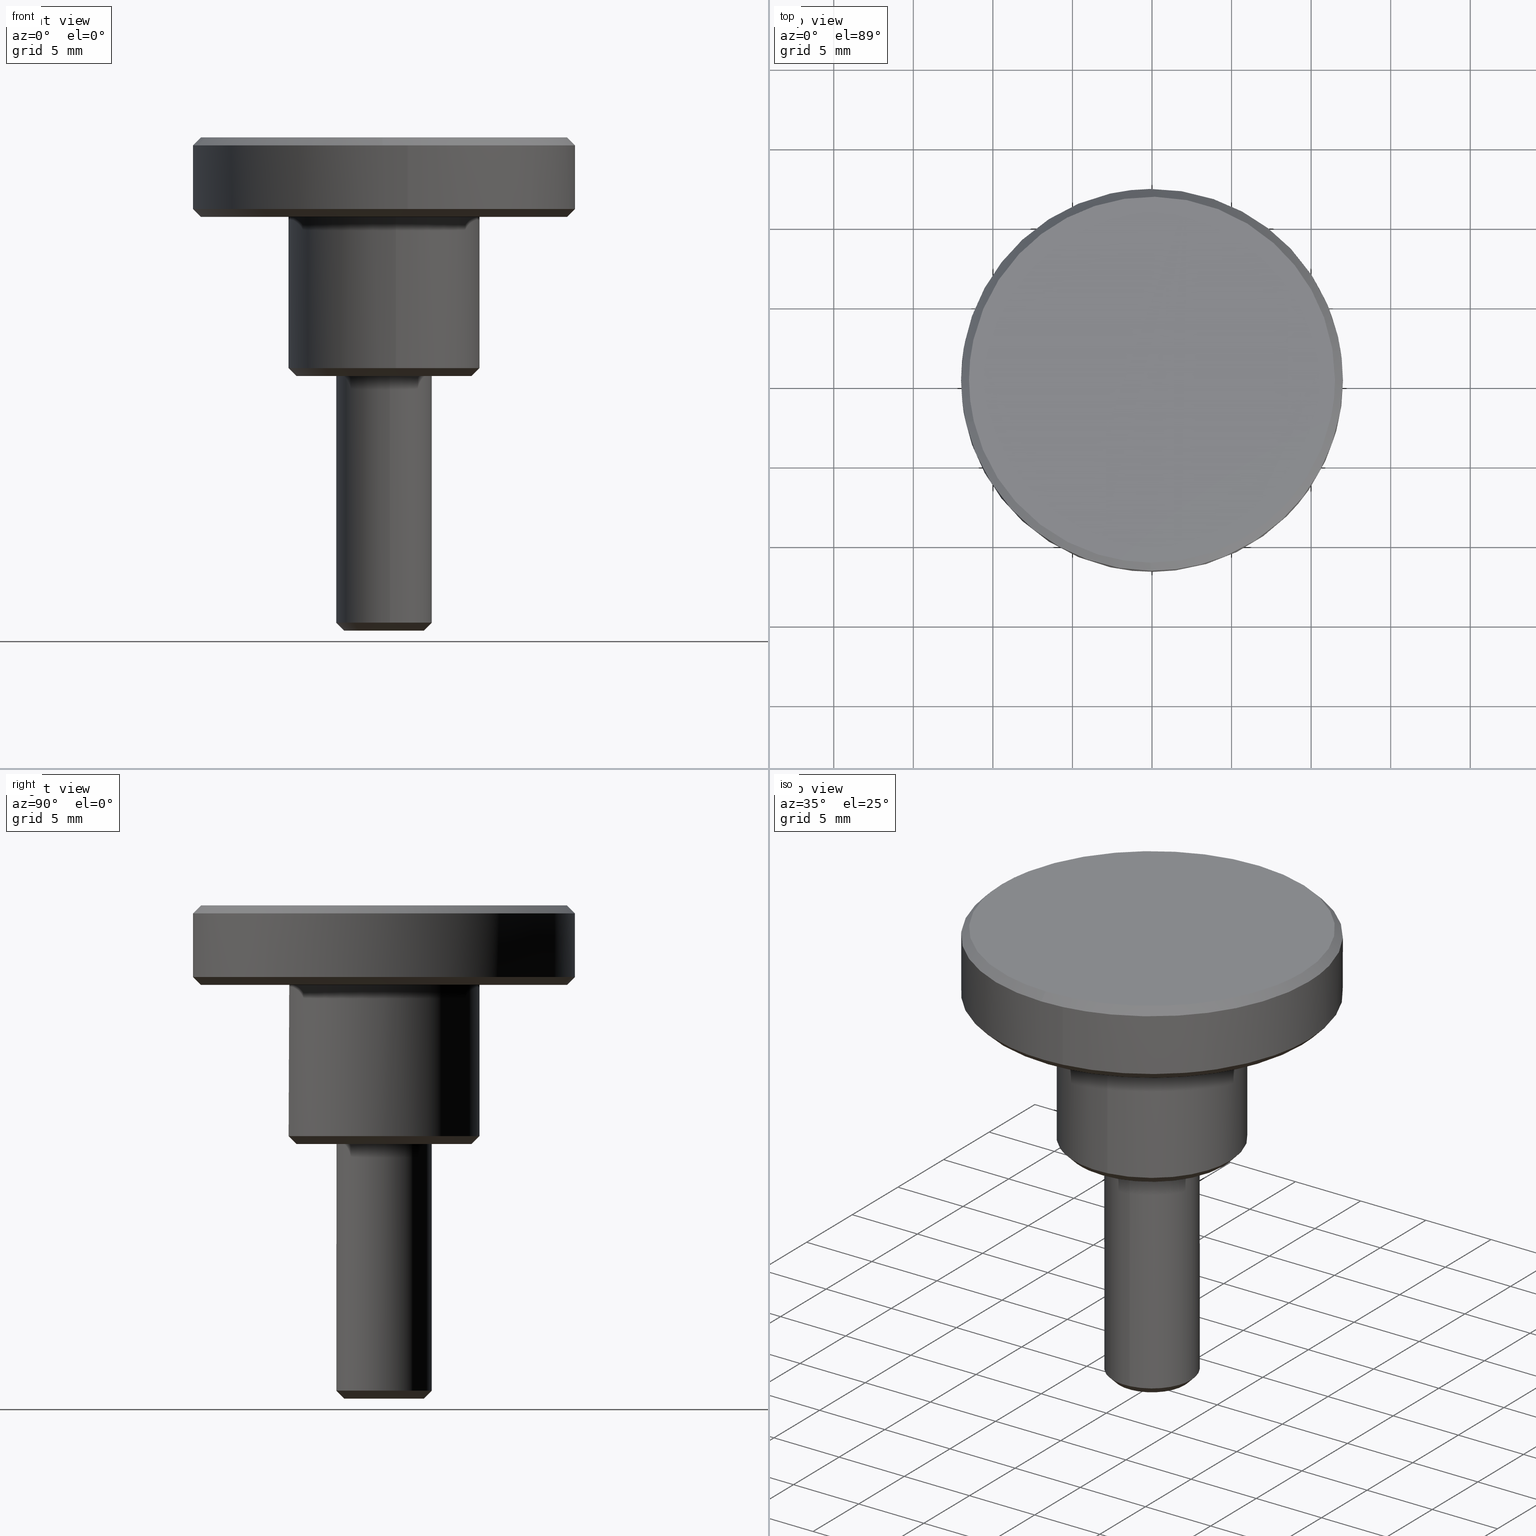
[diagram: canonical four-view strip — front | top / right | iso, engineering-drawing reading convention]
A machine part, canonical four-view strip (front | top / right | iso — engineering-drawing reading convention). The complete STEP part file that produces these views, byte-faithful:
ISO-10303-21;
HEADER;
/****************************************************************
 * Generated by software with PDE/Lib inside                    *
 * PDElib Version 4.4.1-0003, patched  Thursday August 19 11:58 *
 * International Technegroup Inc. (www.iti-oh.com)              *
 ****************************************************************/
FILE_DESCRIPTION((''),'2;1');
FILE_NAME('','2005-07-15T10:50:49',(''),(''),'','CADfix','');
FILE_SCHEMA(('AUTOMOTIVE_DESIGN'));
ENDSEC;
DATA;
#5=APPLICATION_CONTEXT('automotive design');
#6=APPLICATION_PROTOCOL_DEFINITION('Draft International Standard','automotive_design',1998,#5);
#7=PRODUCT_CONTEXT('None',#5,'mechanical');
#8=PRODUCT('knob','','None',(#7));
#9=PRODUCT_RELATED_PRODUCT_CATEGORY('part','description',(#8));
#10=PRODUCT_DEFINITION_FORMATION('None','None',#8);
#11=PRODUCT_DEFINITION_CONTEXT('part definition',#5,'design');
#12=PRODUCT_DEFINITION('None','None',#10,#11);
#18=(NAMED_UNIT(*)PLANE_ANGLE_UNIT()SI_UNIT($,.RADIAN.));
#19=DIMENSIONAL_EXPONENTS(0.0,0.0,0.0,0.0,0.0,0.0,0.0);
#20=PLANE_ANGLE_MEASURE_WITH_UNIT(PLANE_ANGLE_MEASURE(0.017453292500000),#18);
#24=(CONVERSION_BASED_UNIT('DEGREE',#20)NAMED_UNIT(#19)PLANE_ANGLE_UNIT());
#28=(NAMED_UNIT(*)SI_UNIT($,.STERADIAN.)SOLID_ANGLE_UNIT());
#32=(LENGTH_UNIT()NAMED_UNIT(*)SI_UNIT(.MILLI.,.METRE.));
#34=UNCERTAINTY_MEASURE_WITH_UNIT(LENGTH_MEASURE(0.001000000000000),#32,'DISTANCE_ACCURACY_VALUE','');
#36=(GEOMETRIC_REPRESENTATION_CONTEXT(3)GLOBAL_UNCERTAINTY_ASSIGNED_CONTEXT((#34))GLOBAL_UNIT_ASSIGNED_CONTEXT((#24,#28,#32))REPRESENTATION_CONTEXT('None','None'));
#37=AXIS2_PLACEMENT_3D('',#38,#39,#40);
#38=CARTESIAN_POINT('',(0.0,0.0,0.0));
#39=DIRECTION('',(0.0,0.0,1.0));
#40=DIRECTION('',(1.0,0.0,0.0));
#41=ADVANCED_BREP_SHAPE_REPRESENTATION('',(#37,#1263),#36);
#42=PRODUCT_DEFINITION_SHAPE('','',#12);
#43=SHAPE_DEFINITION_REPRESENTATION(#42,#41);
#44=CARTESIAN_POINT('',(-1.005485887069838,-2.275226226313197,-16.012499999999996));
#45=CARTESIAN_POINT('',(-0.514770454620326,-2.492087053684582,-16.012499999999996));
#46=CARTESIAN_POINT('',(0.021707257052205,-2.487405283622127,-16.012499999999999));
#47=CARTESIAN_POINT('',(2.509112540674333,-2.465698026569922,-16.012499999999996));
#48=CARTESIAN_POINT('',(2.487405283622127,0.021707257052205,-16.012499999999999));
#49=CARTESIAN_POINT('',(2.465698026569922,2.509112540674333,-16.012499999999996));
#50=CARTESIAN_POINT('',(-0.021707257052205,2.487405283622127,-16.012499999999999));
#51=CARTESIAN_POINT('',(-1.217825306185946,-2.755710558779537,-15.487187500000005));
#52=CARTESIAN_POINT('',(-0.623480144848552,-3.018368251830729,-15.487187500000001));
#53=CARTESIAN_POINT('',(0.026291415231194,-3.012697781331719,-15.487187499999999));
#54=CARTESIAN_POINT('',(3.038989196562912,-2.986406366100526,-15.487187499999992));
#55=CARTESIAN_POINT('',(3.012697781331719,0.026291415231194,-15.487187499999999));
#56=CARTESIAN_POINT('',(2.986406366100526,3.038989196562912,-15.487187499999992));
#57=CARTESIAN_POINT('',(-0.026291415231194,3.012697781331719,-15.487187499999999));
#65=(BOUNDED_SURFACE()B_SPLINE_SURFACE(2,1,((#44,#51),(#45,#52),(#46,#53),(#47,#54),(#48,#55),(#49,#56),(#50,#57)),.UNSPECIFIED.,.F.,.F.,.U.)B_SPLINE_SURFACE_WITH_KNOTS((3,2,2,3),(2,2),(0.0,1.397701534193628,6.389492727742298,11.381283921290970),(0.0,1.0),.UNSPECIFIED.)GEOMETRIC_REPRESENTATION_ITEM()RATIONAL_B_SPLINE_SURFACE(((0.881905454174416,0.881905454174416),(0.917989898732233,0.917989898732233),(1.0,1.0),(0.707106781186548,0.707106781186548),(1.0,1.0),(0.707106781186548,0.707106781186548),(1.0,1.0)))REPRESENTATION_ITEM('')SURFACE());
#66=CARTESIAN_POINT('',(-1.212646295988026,-2.743991428711031,-15.499999999997790));
#67=VERTEX_POINT('',#66);
#68=CARTESIAN_POINT('',(0.372384006263488,-2.976798641473614,-15.500000000000000));
#69=VERTEX_POINT('',#68);
#70=CARTESIAN_POINT('',(-1.212646295988027,-2.743991428711031,-15.499999999997790));
#71=CARTESIAN_POINT('',(-0.633346851782509,-3.0,-15.500000000000004));
#72=CARTESIAN_POINT('',(0.0,-3.0,-15.500000000000000));
#73=CARTESIAN_POINT('',(0.186914782624762,-3.000000000000000,-15.499999999999996));
#74=CARTESIAN_POINT('',(0.372384006263488,-2.976798641473614,-15.500000000000002));
#82=(BOUNDED_CURVE()B_SPLINE_CURVE(2,(#70,#71,#72,#73,#74),.UNSPECIFIED.,.F.,.U.)B_SPLINE_CURVE_WITH_KNOTS((3,2,3),(0.181361578457257,0.250000000000000,0.271473928973420),.UNSPECIFIED.)CURVE()GEOMETRIC_REPRESENTATION_ITEM()RATIONAL_B_SPLINE_CURVE((0.883326595749057,0.919585087120285,1.0,0.974841727289614,0.954005430269442))REPRESENTATION_ITEM(''));
#83=EDGE_CURVE('',#67,#69,#82,.T.);
#84=ORIENTED_EDGE('',*,*,#83,.F.);
#85=CARTESIAN_POINT('',(-1.010538579970380,-2.286659523932618,-15.999999999999940));
#86=VERTEX_POINT('',#85);
#87=CARTESIAN_POINT('',(-1.010538579970380,-2.286659523932618,-15.999999999999940));
#88=CARTESIAN_POINT('',(-1.212646295988026,-2.743991428711031,-15.499999999997790));
#89=QUASI_UNIFORM_CURVE('',1,(#87,#88),.UNSPECIFIED.,.F.,.U.);
#90=EDGE_CURVE('',#86,#67,#89,.T.);
#91=ORIENTED_EDGE('',*,*,#90,.F.);
#92=CARTESIAN_POINT('',(2.500000000000000,0.0,-16.0));
#93=VERTEX_POINT('',#92);
#94=CARTESIAN_POINT('',(2.500000000000000,0.0,-16.0));
#95=CARTESIAN_POINT('',(2.500000000000000,-2.500000000000000,-15.999999999999998));
#96=CARTESIAN_POINT('',(0.0,-2.500000000000000,-16.0));
#97=CARTESIAN_POINT('',(-0.527789043130474,-2.500000000000000,-16.000000000000004));
#98=CARTESIAN_POINT('',(-1.010538579970380,-2.286659523932618,-15.999999999999941));
#106=(BOUNDED_CURVE()B_SPLINE_CURVE(2,(#94,#95,#96,#97,#98),.UNSPECIFIED.,.F.,.U.)B_SPLINE_CURVE_WITH_KNOTS((3,2,3),(0.500000000000000,0.750000000000000,0.818638421540158),.UNSPECIFIED.)CURVE()GEOMETRIC_REPRESENTATION_ITEM()RATIONAL_B_SPLINE_CURVE((1.0,0.707106781186548,1.0,0.919585087123314,0.883326595751788))REPRESENTATION_ITEM(''));
#107=EDGE_CURVE('',#93,#86,#106,.T.);
#108=ORIENTED_EDGE('',*,*,#107,.F.);
#109=CARTESIAN_POINT('',(-0.021816338839869,2.499904807672422,-15.999999999987191));
#110=VERTEX_POINT('',#109);
#111=CARTESIAN_POINT('',(-0.021816338839869,2.499904807672423,-15.999999999987184));
#112=CARTESIAN_POINT('',(-0.010908377145582,2.500000000000001,-15.999999999999996));
#113=CARTESIAN_POINT('',(0.0,2.500000000000000,-16.0));
#114=CARTESIAN_POINT('',(2.500000000000000,2.500000000000000,-15.999999999999998));
#115=CARTESIAN_POINT('',(2.500000000000000,0.0,-16.0));
#123=(BOUNDED_CURVE()B_SPLINE_CURVE(2,(#111,#112,#113,#114,#115),.UNSPECIFIED.,.F.,.U.)B_SPLINE_CURVE_WITH_KNOTS((3,2,3),(0.248460105651791,0.250000000000000,0.500000000000000),.UNSPECIFIED.)CURVE()GEOMETRIC_REPRESENTATION_ITEM()RATIONAL_B_SPLINE_CURVE((0.996414028069808,0.998195901550882,1.0,0.707106781186548,1.0))REPRESENTATION_ITEM(''));
#124=EDGE_CURVE('',#110,#93,#123,.T.);
#125=ORIENTED_EDGE('',*,*,#124,.F.);
#126=CARTESIAN_POINT('',(-0.026179606505881,2.999885769192394,-15.500000000000000));
#127=VERTEX_POINT('',#126);
#128=CARTESIAN_POINT('',(-0.021816338839869,2.499904807672422,-15.999999999987191));
#129=CARTESIAN_POINT('',(-0.026179606505881,2.999885769192394,-15.500000000000000));
#130=QUASI_UNIFORM_CURVE('',1,(#128,#129),.UNSPECIFIED.,.F.,.U.);
#131=EDGE_CURVE('',#110,#127,#130,.T.);
#132=ORIENTED_EDGE('',*,*,#131,.T.);
#133=CARTESIAN_POINT('',(3.0,0.0,-15.500000000000000));
#134=VERTEX_POINT('',#133);
#135=CARTESIAN_POINT('',(3.0,0.0,-15.500000000000000));
#136=CARTESIAN_POINT('',(3.0,3.0,-15.500000000000004));
#137=CARTESIAN_POINT('',(0.0,3.0,-15.500000000000000));
#138=CARTESIAN_POINT('',(-0.013090052483620,3.000000000000000,-15.500000000000002));
#139=CARTESIAN_POINT('',(-0.026179606505881,2.999885769192395,-15.499999999999996));
#147=(BOUNDED_CURVE()B_SPLINE_CURVE(2,(#135,#136,#137,#138,#139),.UNSPECIFIED.,.F.,.U.)B_SPLINE_CURVE_WITH_KNOTS((3,2,3),(0.500000000000000,0.750000000000000,0.751539894337514),.UNSPECIFIED.)CURVE()GEOMETRIC_REPRESENTATION_ITEM()RATIONAL_B_SPLINE_CURVE((1.0,0.707106781186548,1.0,0.998195901563412,0.996414028094559))REPRESENTATION_ITEM(''));
#148=EDGE_CURVE('',#134,#127,#147,.T.);
#149=ORIENTED_EDGE('',*,*,#148,.F.);
#150=CARTESIAN_POINT('',(0.372384006263488,-2.976798641473614,-15.500000000000000));
#151=CARTESIAN_POINT('',(3.000000000000000,-2.648095800407653,-15.500000000000002));
#152=CARTESIAN_POINT('',(3.0,0.0,-15.500000000000000));
#160=(BOUNDED_CURVE()B_SPLINE_CURVE(2,(#150,#151,#152),.UNSPECIFIED.,.F.,.U.)B_SPLINE_CURVE_WITH_KNOTS((3,3),(0.271473928973421,0.500000000000000),.UNSPECIFIED.)CURVE()GEOMETRIC_REPRESENTATION_ITEM()RATIONAL_B_SPLINE_CURVE((0.954005430269441,0.732265053896934,1.0))REPRESENTATION_ITEM(''));
#161=EDGE_CURVE('',#69,#134,#160,.T.);
#162=ORIENTED_EDGE('',*,*,#161,.F.);
#163=EDGE_LOOP('',(#84,#91,#108,#125,#132,#149,#162));
#164=FACE_OUTER_BOUND('',#163,.T.);
#165=ADVANCED_FACE('',(#164),#65,.T.);
#166=CARTESIAN_POINT('',(-0.021707257052205,2.487405283622127,-16.012499999999999));
#167=CARTESIAN_POINT('',(-2.509112540674333,2.465698026569922,-16.012499999999996));
#168=CARTESIAN_POINT('',(-2.487405283622127,-0.021707257052205,-16.012499999999999));
#169=CARTESIAN_POINT('',(-2.473400348126792,-1.626513910610784,-16.012499999999989));
#170=CARTESIAN_POINT('',(-1.005485887069838,-2.275226226313197,-16.012499999999996));
#171=CARTESIAN_POINT('',(-0.026291415231194,3.012697781331719,-15.487187499999999));
#172=CARTESIAN_POINT('',(-3.038989196562912,2.986406366100526,-15.487187499999992));
#173=CARTESIAN_POINT('',(-3.012697781331719,-0.026291415231194,-15.487187499999999));
#174=CARTESIAN_POINT('',(-2.995735270890697,-1.970002589472144,-15.487187499999992));
#175=CARTESIAN_POINT('',(-1.217825306185946,-2.755710558779537,-15.487187500000005));
#183=(BOUNDED_SURFACE()B_SPLINE_SURFACE(2,1,((#166,#171),(#167,#172),(#168,#173),(#169,#174),(#170,#175)),.UNSPECIFIED.,.F.,.F.,.U.)B_SPLINE_SURFACE_WITH_KNOTS((3,2,3),(2,2),(0.0,4.991791193548670,8.585880852903712),(0.0,1.0),.UNSPECIFIED.)GEOMETRIC_REPRESENTATION_ITEM()RATIONAL_B_SPLINE_SURFACE(((1.0,1.0),(0.707106781186548,0.707106781186548),(1.0,1.0),(0.789116882454314,0.789116882454314),(0.881905454174416,0.881905454174416)))REPRESENTATION_ITEM('')SURFACE());
#184=CARTESIAN_POINT('',(-3.0,0.0,-15.500000000000000));
#185=VERTEX_POINT('',#184);
#186=CARTESIAN_POINT('',(-3.0,0.0,-15.500000000000000));
#187=CARTESIAN_POINT('',(-3.0,-1.954110007738252,-15.500000000000000));
#188=CARTESIAN_POINT('',(-1.212646295988027,-2.743991428711031,-15.499999999997790));
#196=(BOUNDED_CURVE()B_SPLINE_CURVE(2,(#186,#187,#188),.UNSPECIFIED.,.F.,.U.)B_SPLINE_CURVE_WITH_KNOTS((3,3),(0.0,0.181361578457257),.UNSPECIFIED.)CURVE()GEOMETRIC_REPRESENTATION_ITEM()RATIONAL_B_SPLINE_CURVE((1.0,0.787521694066263,0.883326595749057))REPRESENTATION_ITEM(''));
#197=EDGE_CURVE('',#185,#67,#196,.T.);
#198=ORIENTED_EDGE('',*,*,#197,.F.);
#199=CARTESIAN_POINT('',(-0.026179606505881,2.999885769192395,-15.499999999999993));
#200=CARTESIAN_POINT('',(-3.000000000000000,2.973933631742270,-15.500000000000005));
#201=CARTESIAN_POINT('',(-3.0,0.0,-15.500000000000000));
#209=(BOUNDED_CURVE()B_SPLINE_CURVE(2,(#199,#200,#201),.UNSPECIFIED.,.F.,.U.)B_SPLINE_CURVE_WITH_KNOTS((3,3),(0.751539894337514,1.0),.UNSPECIFIED.)CURVE()GEOMETRIC_REPRESENTATION_ITEM()RATIONAL_B_SPLINE_CURVE((0.996414028094558,0.708910879623136,1.0))REPRESENTATION_ITEM(''));
#210=EDGE_CURVE('',#127,#185,#209,.T.);
#211=ORIENTED_EDGE('',*,*,#210,.F.);
#212=ORIENTED_EDGE('',*,*,#131,.F.);
#213=CARTESIAN_POINT('',(-2.500000000000000,0.0,-16.0));
#214=VERTEX_POINT('',#213);
#215=CARTESIAN_POINT('',(-2.500000000000000,0.0,-16.0));
#216=CARTESIAN_POINT('',(-2.500000000000000,2.478278026301417,-16.000000000000004));
#217=CARTESIAN_POINT('',(-0.021816338839869,2.499904807672422,-15.999999999987191));
#225=(BOUNDED_CURVE()B_SPLINE_CURVE(2,(#215,#216,#217),.UNSPECIFIED.,.F.,.U.)B_SPLINE_CURVE_WITH_KNOTS((3,3),(0.0,0.248460105651791),.UNSPECIFIED.)CURVE()GEOMETRIC_REPRESENTATION_ITEM()RATIONAL_B_SPLINE_CURVE((1.0,0.708910879635665,0.996414028069808))REPRESENTATION_ITEM(''));
#226=EDGE_CURVE('',#214,#110,#225,.T.);
#227=ORIENTED_EDGE('',*,*,#226,.F.);
#228=CARTESIAN_POINT('',(-1.010538579970380,-2.286659523932618,-15.999999999999945));
#229=CARTESIAN_POINT('',(-2.500000000000000,-1.628425006478024,-15.999999999999995));
#230=CARTESIAN_POINT('',(-2.500000000000000,0.0,-16.0));
#238=(BOUNDED_CURVE()B_SPLINE_CURVE(2,(#228,#229,#230),.UNSPECIFIED.,.F.,.U.)B_SPLINE_CURVE_WITH_KNOTS((3,3),(0.818638421540158,1.0),.UNSPECIFIED.)CURVE()GEOMETRIC_REPRESENTATION_ITEM()RATIONAL_B_SPLINE_CURVE((0.883326595751789,0.787521694063233,1.0))REPRESENTATION_ITEM(''));
#239=EDGE_CURVE('',#86,#214,#238,.T.);
#240=ORIENTED_EDGE('',*,*,#239,.F.);
#241=ORIENTED_EDGE('',*,*,#90,.T.);
#242=EDGE_LOOP('',(#198,#211,#212,#227,#240,#241));
#243=FACE_OUTER_BOUND('',#242,.T.);
#244=ADVANCED_FACE('',(#243),#183,.T.);
#245=CARTESIAN_POINT('',(-11.191331034639012,-2.591672418174083,15.012500000000003));
#246=CARTESIAN_POINT('',(-11.498961770299591,-1.263264794176366,15.012500000000003));
#247=CARTESIAN_POINT('',(-11.487062591199610,0.100246076537570,15.012499999999999));
#248=CARTESIAN_POINT('',(-11.386816514662039,11.587308667737178,15.012500000000008));
#249=CARTESIAN_POINT('',(0.100246076537570,11.487062591199610,15.012499999999999));
#250=CARTESIAN_POINT('',(11.587308667737178,11.386816514662039,15.012500000000008));
#251=CARTESIAN_POINT('',(11.487062591199610,-0.100246076537570,15.012499999999999));
#252=CARTESIAN_POINT('',(11.386816514662039,-11.587308667737178,15.012500000000008));
#253=CARTESIAN_POINT('',(-0.100246076537570,-11.487062591199610,15.012499999999999));
#254=CARTESIAN_POINT('',(-11.703100008230697,-2.710187144369708,14.487187499999997));
#255=CARTESIAN_POINT('',(-12.024798406204811,-1.321032697305058,14.487187500000001));
#256=CARTESIAN_POINT('',(-12.012355088909320,0.104830234716560,14.487187499999999));
#257=CARTESIAN_POINT('',(-11.907524854192760,12.117185323625877,14.487187500000005));
#258=CARTESIAN_POINT('',(0.104830234716560,12.012355088909320,14.487187499999999));
#259=CARTESIAN_POINT('',(12.117185323625877,11.907524854192760,14.487187500000005));
#260=CARTESIAN_POINT('',(12.012355088909320,-0.104830234716560,14.487187499999999));
#261=CARTESIAN_POINT('',(11.907524854192760,-12.117185323625877,14.487187500000005));
#262=CARTESIAN_POINT('',(-0.104830234716560,-12.012355088909320,14.487187499999999));
#270=(BOUNDED_SURFACE()B_SPLINE_SURFACE(2,1,((#245,#254),(#246,#255),(#247,#256),(#248,#257),(#249,#258),(#250,#259),(#251,#260),(#252,#261),(#253,#262)),.UNSPECIFIED.,.F.,.F.,.U.)B_SPLINE_SURFACE_WITH_KNOTS((3,2,2,2,3),(2,2),(0.0,3.184556710236832,23.088036149217022,42.991515588197210,62.894995027177401),(0.0,1.0),.UNSPECIFIED.)GEOMETRIC_REPRESENTATION_ITEM()RATIONAL_B_SPLINE_SURFACE(((0.921270302782944,0.921270302782944),(0.953137084989848,0.953137084989848),(1.0,1.0),(0.707106781186548,0.707106781186548),(1.0,1.0),(0.707106781186548,0.707106781186548),(1.0,1.0),(0.707106781186548,0.707106781186548),(1.0,1.0)))REPRESENTATION_ITEM('')SURFACE());
#271=CARTESIAN_POINT('',(-11.690617838141559,-2.707296541305387,14.499999999998430));
#272=VERTEX_POINT('',#271);
#273=CARTESIAN_POINT('',(-12.0,0.0,14.500000000000000));
#274=VERTEX_POINT('',#273);
#275=CARTESIAN_POINT('',(-11.690617838141559,-2.707296541305388,14.499999999998428));
#276=CARTESIAN_POINT('',(-12.000000000000005,-1.371325928170661,14.500000000000004));
#277=CARTESIAN_POINT('',(-12.0,0.0,14.500000000000000));
#285=(BOUNDED_CURVE()B_SPLINE_CURVE(2,(#275,#276,#277),.UNSPECIFIED.,.F.,.U.)B_SPLINE_CURVE_WITH_KNOTS((3,3),(0.961422971784239,1.0),.UNSPECIFIED.)CURVE()GEOMETRIC_REPRESENTATION_ITEM()RATIONAL_B_SPLINE_CURVE((0.923556557442184,0.954804200134513,1.0))REPRESENTATION_ITEM(''));
#286=EDGE_CURVE('',#272,#274,#285,.T.);
#287=ORIENTED_EDGE('',*,*,#286,.F.);
#288=CARTESIAN_POINT('',(-11.203508761552680,-2.594492518747762,14.999999999998851));
#289=VERTEX_POINT('',#288);
#290=CARTESIAN_POINT('',(-11.203508761552680,-2.594492518747762,14.999999999998851));
#291=CARTESIAN_POINT('',(-11.690617838141559,-2.707296541305387,14.499999999998430));
#292=QUASI_UNIFORM_CURVE('',1,(#290,#291),.UNSPECIFIED.,.F.,.U.);
#293=EDGE_CURVE('',#289,#272,#292,.T.);
#294=ORIENTED_EDGE('',*,*,#293,.F.);
#295=CARTESIAN_POINT('',(-11.500000000000000,0.0,15.0));
#296=VERTEX_POINT('',#295);
#297=CARTESIAN_POINT('',(-11.500000000000000,0.0,15.0));
#298=CARTESIAN_POINT('',(-11.500000000000000,-1.314187347826932,14.999999999999996));
#299=CARTESIAN_POINT('',(-11.203508761552674,-2.594492518747762,14.999999999998847));
#307=(BOUNDED_CURVE()B_SPLINE_CURVE(2,(#297,#298,#299),.UNSPECIFIED.,.F.,.U.)B_SPLINE_CURVE_WITH_KNOTS((3,3),(0.500000000000000,0.538577028215669),.UNSPECIFIED.)CURVE()GEOMETRIC_REPRESENTATION_ITEM()RATIONAL_B_SPLINE_CURVE((1.0,0.954804200134621,0.923556557442334))REPRESENTATION_ITEM(''));
#308=EDGE_CURVE('',#296,#289,#307,.T.);
#309=ORIENTED_EDGE('',*,*,#308,.F.);
#310=CARTESIAN_POINT('',(11.500000000000000,0.0,15.0));
#311=VERTEX_POINT('',#310);
#312=CARTESIAN_POINT('',(11.500000000000000,0.0,15.0));
#313=CARTESIAN_POINT('',(11.500000000000000,11.500000000000000,14.999999999999995));
#314=CARTESIAN_POINT('',(0.0,11.500000000000000,15.0));
#315=CARTESIAN_POINT('',(-11.500000000000000,11.500000000000000,14.999999999999995));
#316=CARTESIAN_POINT('',(-11.500000000000000,0.0,15.0));
#324=(BOUNDED_CURVE()B_SPLINE_CURVE(2,(#312,#313,#314,#315,#316),.UNSPECIFIED.,.F.,.U.)B_SPLINE_CURVE_WITH_KNOTS((3,2,3),(0.0,0.250000000000000,0.500000000000000),.UNSPECIFIED.)CURVE()GEOMETRIC_REPRESENTATION_ITEM()RATIONAL_B_SPLINE_CURVE((1.0,0.707106781186548,1.0,0.707106781186548,1.0))REPRESENTATION_ITEM(''));
#325=EDGE_CURVE('',#311,#296,#324,.T.);
#326=ORIENTED_EDGE('',*,*,#325,.F.);
#327=CARTESIAN_POINT('',(-0.100355158261154,-11.499562115241760,14.999999999995930));
#328=VERTEX_POINT('',#327);
#329=CARTESIAN_POINT('',(-0.100355158261154,-11.499562115241757,14.999999999995921));
#330=CARTESIAN_POINT('',(-0.050178534467889,-11.499999999999998,15.000000000000002));
#331=CARTESIAN_POINT('',(0.0,-11.500000000000000,15.0));
#332=CARTESIAN_POINT('',(11.500000000000000,-11.500000000000000,14.999999999999995));
#333=CARTESIAN_POINT('',(11.500000000000000,0.0,15.0));
#341=(BOUNDED_CURVE()B_SPLINE_CURVE(2,(#329,#330,#331,#332,#333),.UNSPECIFIED.,.F.,.U.)B_SPLINE_CURVE_WITH_KNOTS((3,2,3),(0.748460105664099,0.750000000000000,1.0),.UNSPECIFIED.)CURVE()GEOMETRIC_REPRESENTATION_ITEM()RATIONAL_B_SPLINE_CURVE((0.996414028098292,0.998195901565302,1.0,0.707106781186548,1.0))REPRESENTATION_ITEM(''));
#342=EDGE_CURVE('',#328,#311,#341,.T.);
#343=ORIENTED_EDGE('',*,*,#342,.F.);
#344=CARTESIAN_POINT('',(-0.104718426021702,-11.999543076775300,14.499999999994399));
#345=VERTEX_POINT('',#344);
#346=CARTESIAN_POINT('',(-0.100355158261154,-11.499562115241760,14.999999999995930));
#347=CARTESIAN_POINT('',(-0.104718426021702,-11.999543076775300,14.499999999994399));
#348=QUASI_UNIFORM_CURVE('',1,(#346,#347),.UNSPECIFIED.,.F.,.U.);
#349=EDGE_CURVE('',#328,#345,#348,.T.);
#350=ORIENTED_EDGE('',*,*,#349,.T.);
#351=CARTESIAN_POINT('',(1.489528086932241,-11.907195558912100,14.500000000000041));
#352=VERTEX_POINT('',#351);
#353=CARTESIAN_POINT('',(1.489528086932241,-11.907195558912093,14.500000000000032));
#354=CARTESIAN_POINT('',(0.747655114927344,-12.000000000000004,14.500000000000004));
#355=CARTESIAN_POINT('',(0.0,-12.0,14.500000000000000));
#356=CARTESIAN_POINT('',(-0.052360209889577,-12.000000000000002,14.500000000000000));
#357=CARTESIAN_POINT('',(-0.104718426021702,-11.999543076775302,14.499999999994401));
#365=(BOUNDED_CURVE()B_SPLINE_CURVE(2,(#353,#354,#355,#356,#357),.UNSPECIFIED.,.F.,.U.)B_SPLINE_CURVE_WITH_KNOTS((3,2,3),(0.728526183458447,0.750000000000000,0.751539894336195),.UNSPECIFIED.)CURVE()GEOMETRIC_REPRESENTATION_ITEM()RATIONAL_B_SPLINE_CURVE((0.954005648456348,0.974841859011740,1.0,0.998195901564957,0.996414028097609))REPRESENTATION_ITEM(''));
#366=EDGE_CURVE('',#352,#345,#365,.T.);
#367=ORIENTED_EDGE('',*,*,#366,.F.);
#368=CARTESIAN_POINT('',(12.0,0.0,14.500000000000000));
#369=VERTEX_POINT('',#368);
#370=CARTESIAN_POINT('',(12.0,0.0,14.500000000000000));
#371=CARTESIAN_POINT('',(12.0,-10.592390318338282,14.499999999999996));
#372=CARTESIAN_POINT('',(1.489528086932241,-11.907195558912093,14.500000000000032));
#380=(BOUNDED_CURVE()B_SPLINE_CURVE(2,(#370,#371,#372),.UNSPECIFIED.,.F.,.U.)B_SPLINE_CURVE_WITH_KNOTS((3,3),(0.500000000000000,0.728526183458447),.UNSPECIFIED.)CURVE()GEOMETRIC_REPRESENTATION_ITEM()RATIONAL_B_SPLINE_CURVE((1.0,0.732264922174807,0.954005648456348))REPRESENTATION_ITEM(''));
#381=EDGE_CURVE('',#369,#352,#380,.T.);
#382=ORIENTED_EDGE('',*,*,#381,.F.);
#383=CARTESIAN_POINT('',(-0.104708695687644,11.999543161677140,14.500000000000020));
#384=VERTEX_POINT('',#383);
#385=CARTESIAN_POINT('',(-0.104708695687644,11.999543161677138,14.500000000000012));
#386=CARTESIAN_POINT('',(-0.052355344424153,12.000000000000002,14.500000000000004));
#387=CARTESIAN_POINT('',(0.0,12.0,14.500000000000000));
#388=CARTESIAN_POINT('',(12.0,12.0,14.500000000000000));
#389=CARTESIAN_POINT('',(12.0,0.0,14.500000000000000));
#397=(BOUNDED_CURVE()B_SPLINE_CURVE(2,(#385,#386,#387,#388,#389),.UNSPECIFIED.,.F.,.U.)B_SPLINE_CURVE_WITH_KNOTS((3,2,3),(0.248460248497209,0.250000000000000,0.500000000000000),.UNSPECIFIED.)CURVE()GEOMETRIC_REPRESENTATION_ITEM()RATIONAL_B_SPLINE_CURVE((0.996414358654318,0.998196068904699,1.0,0.707106781186548,1.0))REPRESENTATION_ITEM(''));
#398=EDGE_CURVE('',#384,#369,#397,.T.);
#399=ORIENTED_EDGE('',*,*,#398,.F.);
#400=CARTESIAN_POINT('',(-12.0,0.0,14.500000000000000));
#401=CARTESIAN_POINT('',(-12.0,11.895744173626527,14.499999999999996));
#402=CARTESIAN_POINT('',(-0.104708695687644,11.999543161677138,14.500000000000012));
#410=(BOUNDED_CURVE()B_SPLINE_CURVE(2,(#400,#401,#402),.UNSPECIFIED.,.F.,.U.)B_SPLINE_CURVE_WITH_KNOTS((3,3),(0.0,0.248460248497209),.UNSPECIFIED.)CURVE()GEOMETRIC_REPRESENTATION_ITEM()RATIONAL_B_SPLINE_CURVE((1.0,0.708910712281848,0.996414358654318))REPRESENTATION_ITEM(''));
#411=EDGE_CURVE('',#274,#384,#410,.T.);
#412=ORIENTED_EDGE('',*,*,#411,.F.);
#413=EDGE_LOOP('',(#287,#294,#309,#326,#343,#350,#367,#382,#399,#412));
#414=FACE_OUTER_BOUND('',#413,.T.);
#415=ADVANCED_FACE('',(#414),#270,.T.);
#416=CARTESIAN_POINT('',(-0.100246076537570,-11.487062591199610,15.012499999999999));
#417=CARTESIAN_POINT('',(-9.149637732336018,-11.408089746632660,15.012500000000003));
#418=CARTESIAN_POINT('',(-11.191331034639012,-2.591672418174083,15.012500000000003));
#419=CARTESIAN_POINT('',(-0.104830234716560,-12.012355088909320,14.487187499999999));
#420=CARTESIAN_POINT('',(-9.568042004045996,-11.929770890922430,14.487187500000001));
#421=CARTESIAN_POINT('',(-11.703100008230697,-2.710187144369708,14.487187499999997));
#429=(BOUNDED_SURFACE()B_SPLINE_SURFACE(2,1,((#416,#419),(#417,#420),(#418,#421)),.UNSPECIFIED.,.F.,.F.,.U.)B_SPLINE_SURFACE_WITH_KNOTS((3,3),(2,2),(0.0,16.645809910381690),(0.0,1.0),.UNSPECIFIED.)GEOMETRIC_REPRESENTATION_ITEM()RATIONAL_B_SPLINE_SURFACE(((1.0,1.0),(0.753969696196700,0.753969696196700),(0.921270302782944,0.921270302782944)))REPRESENTATION_ITEM('')SURFACE());
#430=CARTESIAN_POINT('',(-0.104718426021702,-11.999543076775298,14.499999999994403));
#431=CARTESIAN_POINT('',(-9.557837021802170,-11.917046960509088,14.500000000000000));
#432=CARTESIAN_POINT('',(-11.690617838141552,-2.707296541305387,14.499999999998428));
#440=(BOUNDED_CURVE()B_SPLINE_CURVE(2,(#430,#431,#432),.UNSPECIFIED.,.F.,.U.)B_SPLINE_CURVE_WITH_KNOTS((3,3),(0.751539894336196,0.961422971784239),.UNSPECIFIED.)CURVE()GEOMETRIC_REPRESENTATION_ITEM()RATIONAL_B_SPLINE_CURVE((0.996414028097609,0.753549905437217,0.923556557442185))REPRESENTATION_ITEM(''));
#441=EDGE_CURVE('',#345,#272,#440,.T.);
#442=ORIENTED_EDGE('',*,*,#441,.F.);
#443=ORIENTED_EDGE('',*,*,#349,.F.);
#444=CARTESIAN_POINT('',(-11.203508761552682,-2.594492518747762,14.999999999998856));
#445=CARTESIAN_POINT('',(-9.159593812562108,-11.420503337169700,15.000000000000002));
#446=CARTESIAN_POINT('',(-0.100355158261154,-11.499562115241758,14.999999999995925));
#454=(BOUNDED_CURVE()B_SPLINE_CURVE(2,(#444,#445,#446),.UNSPECIFIED.,.F.,.U.)B_SPLINE_CURVE_WITH_KNOTS((3,3),(0.538577028215670,0.748460105664099),.UNSPECIFIED.)CURVE()GEOMETRIC_REPRESENTATION_ITEM()RATIONAL_B_SPLINE_CURVE((0.923556557442333,0.753549905436872,0.996414028098291))REPRESENTATION_ITEM(''));
#455=EDGE_CURVE('',#289,#328,#454,.T.);
#456=ORIENTED_EDGE('',*,*,#455,.F.);
#457=ORIENTED_EDGE('',*,*,#293,.T.);
#458=EDGE_LOOP('',(#442,#443,#456,#457));
#459=FACE_OUTER_BOUND('',#458,.T.);
#460=ADVANCED_FACE('',(#459),#429,.T.);
#461=CARTESIAN_POINT('',(9.406724469765697,-6.593647776452057,9.987500000000001));
#462=CARTESIAN_POINT('',(11.519179152623552,-3.579947343821037,9.987499999999999));
#463=CARTESIAN_POINT('',(11.487062591199660,0.100246076537570,9.987499999999999));
#464=CARTESIAN_POINT('',(11.386816514662092,11.587308667737231,9.987499999999999));
#465=CARTESIAN_POINT('',(-0.100246076537570,11.487062591199660,9.987499999999999));
#466=CARTESIAN_POINT('',(-11.587308667737231,11.386816514662092,9.987499999999999));
#467=CARTESIAN_POINT('',(-11.487062591199660,-0.100246076537570,9.987499999999999));
#468=CARTESIAN_POINT('',(-11.386816514662092,-11.587308667737231,9.987499999999999));
#469=CARTESIAN_POINT('',(0.100246076537570,-11.487062591199660,9.987499999999999));
#470=CARTESIAN_POINT('',(9.836885074599064,-6.895169047186953,10.512812500000004));
#471=CARTESIAN_POINT('',(12.045940310282912,-3.743654946785199,10.512812500000003));
#472=CARTESIAN_POINT('',(12.012355088909260,0.104830234716559,10.512812500000001));
#473=CARTESIAN_POINT('',(11.907524854192697,12.117185323625815,10.512812500000003));
#474=CARTESIAN_POINT('',(-0.104830234716559,12.012355088909260,10.512812500000001));
#475=CARTESIAN_POINT('',(-12.117185323625815,11.907524854192697,10.512812500000003));
#476=CARTESIAN_POINT('',(-12.012355088909260,-0.104830234716559,10.512812500000001));
#477=CARTESIAN_POINT('',(-11.907524854192697,-12.117185323625815,10.512812500000003));
#478=CARTESIAN_POINT('',(0.104830234716559,-12.012355088909260,10.512812500000001));
#486=(BOUNDED_SURFACE()B_SPLINE_SURFACE(2,1,((#461,#470),(#462,#471),(#463,#472),(#464,#473),(#465,#474),(#466,#475),(#467,#476),(#468,#477),(#469,#478)),.UNSPECIFIED.,.F.,.F.,.U.)B_SPLINE_SURFACE_WITH_KNOTS((3,2,2,2,3),(2,2),(0.0,7.961391775592033,27.864871214572119,47.768350653552197,67.671830092532289),(0.0,1.0),.UNSPECIFIED.)GEOMETRIC_REPRESENTATION_ITEM()RATIONAL_B_SPLINE_SURFACE(((0.859411254969543,0.859411254969543),(0.882842712474619,0.882842712474619),(1.0,1.0),(0.707106781186548,0.707106781186548),(1.0,1.0),(0.707106781186548,0.707106781186548),(1.0,1.0),(0.707106781186548,0.707106781186548),(1.0,1.0)))REPRESENTATION_ITEM('')SURFACE());
#487=CARTESIAN_POINT('',(11.500000000000000,0.0,10.0));
#488=VERTEX_POINT('',#487);
#489=CARTESIAN_POINT('',(9.416960296170363,-6.600822583614759,10.000000000000339));
#490=VERTEX_POINT('',#489);
#491=CARTESIAN_POINT('',(11.500000000000000,0.0,10.0));
#492=CARTESIAN_POINT('',(11.500000000000002,-3.629086570745974,10.000000000000002));
#493=CARTESIAN_POINT('',(9.416960296170363,-6.600822583614759,10.000000000000336));
#501=(BOUNDED_CURVE()B_SPLINE_CURVE(2,(#491,#492,#493),.UNSPECIFIED.,.F.,.U.)B_SPLINE_CURVE_WITH_KNOTS((3,3),(0.0,0.098673726203079),.UNSPECIFIED.)CURVE()GEOMETRIC_REPRESENTATION_ITEM()RATIONAL_B_SPLINE_CURVE((1.0,0.884396538880251,0.860049271925770))REPRESENTATION_ITEM(''));
#502=EDGE_CURVE('',#488,#490,#501,.T.);
#503=ORIENTED_EDGE('',*,*,#502,.F.);
#504=CARTESIAN_POINT('',(-11.500000000000000,0.0,10.0));
#505=VERTEX_POINT('',#504);
#506=CARTESIAN_POINT('',(-11.500000000000000,0.0,10.0));
#507=CARTESIAN_POINT('',(-11.500000000000000,11.500000000000000,10.000000000000002));
#508=CARTESIAN_POINT('',(0.0,11.500000000000000,10.0));
#509=CARTESIAN_POINT('',(11.500000000000000,11.500000000000000,10.000000000000002));
#510=CARTESIAN_POINT('',(11.500000000000000,0.0,10.0));
#518=(BOUNDED_CURVE()B_SPLINE_CURVE(2,(#506,#507,#508,#509,#510),.UNSPECIFIED.,.F.,.U.)B_SPLINE_CURVE_WITH_KNOTS((3,2,3),(0.500000000000000,0.750000000000000,1.0),.UNSPECIFIED.)CURVE()GEOMETRIC_REPRESENTATION_ITEM()RATIONAL_B_SPLINE_CURVE((1.0,0.707106781186548,1.0,0.707106781186548,1.0))REPRESENTATION_ITEM(''));
#519=EDGE_CURVE('',#505,#488,#518,.T.);
#520=ORIENTED_EDGE('',*,*,#519,.F.);
#521=CARTESIAN_POINT('',(0.100355158261158,-11.499562115241771,10.000000000004061));
#522=VERTEX_POINT('',#521);
#523=CARTESIAN_POINT('',(0.100355158261158,-11.499562115241769,10.000000000004064));
#524=CARTESIAN_POINT('',(0.050178534467893,-11.500000000000000,10.000000000000002));
#525=CARTESIAN_POINT('',(0.0,-11.500000000000000,10.0));
#526=CARTESIAN_POINT('',(-11.500000000000000,-11.500000000000000,10.000000000000002));
#527=CARTESIAN_POINT('',(-11.500000000000000,0.0,10.0));
#535=(BOUNDED_CURVE()B_SPLINE_CURVE(2,(#523,#524,#525,#526,#527),.UNSPECIFIED.,.F.,.U.)B_SPLINE_CURVE_WITH_KNOTS((3,2,3),(0.248460105664099,0.250000000000000,0.500000000000000),.UNSPECIFIED.)CURVE()GEOMETRIC_REPRESENTATION_ITEM()RATIONAL_B_SPLINE_CURVE((0.996414028098291,0.998195901565302,1.0,0.707106781186548,1.0))REPRESENTATION_ITEM(''));
#536=EDGE_CURVE('',#522,#505,#535,.T.);
#537=ORIENTED_EDGE('',*,*,#536,.F.);
#538=CARTESIAN_POINT('',(0.104718425980838,-11.999543076770090,10.500000000000060));
#539=VERTEX_POINT('',#538);
#540=CARTESIAN_POINT('',(0.100355158261158,-11.499562115241771,10.000000000004061));
#541=CARTESIAN_POINT('',(0.104718425980838,-11.999543076770090,10.500000000000060));
#542=QUASI_UNIFORM_CURVE('',1,(#540,#541),.UNSPECIFIED.,.F.,.U.);
#543=EDGE_CURVE('',#522,#539,#542,.T.);
#544=ORIENTED_EDGE('',*,*,#543,.T.);
#545=CARTESIAN_POINT('',(-12.0,0.0,10.500000000000000));
#546=VERTEX_POINT('',#545);
#547=CARTESIAN_POINT('',(-12.0,0.0,10.500000000000000));
#548=CARTESIAN_POINT('',(-12.0,-12.0,10.500000000000002));
#549=CARTESIAN_POINT('',(0.0,-12.0,10.500000000000000));
#550=CARTESIAN_POINT('',(0.052360209848767,-12.0,10.499999999999998));
#551=CARTESIAN_POINT('',(0.104718425980838,-11.999543076770081,10.500000000000068));
#559=(BOUNDED_CURVE()B_SPLINE_CURVE(2,(#547,#548,#549,#550,#551),.UNSPECIFIED.,.F.,.U.)B_SPLINE_CURVE_WITH_KNOTS((3,2,3),(0.0,0.250000000000000,0.251539894334997),.UNSPECIFIED.)CURVE()GEOMETRIC_REPRESENTATION_ITEM()RATIONAL_B_SPLINE_CURVE((1.0,0.707106781186548,1.0,0.998195901566360,0.996414028100382))REPRESENTATION_ITEM(''));
#560=EDGE_CURVE('',#546,#539,#559,.T.);
#561=ORIENTED_EDGE('',*,*,#560,.F.);
#562=CARTESIAN_POINT('',(-0.104708313807311,11.999543165009131,10.500000000000000));
#563=VERTEX_POINT('',#562);
#564=CARTESIAN_POINT('',(-0.104708313807311,11.999543165009134,10.499999999999996));
#565=CARTESIAN_POINT('',(-12.000000000000002,11.895744552217918,10.500000000000000));
#566=CARTESIAN_POINT('',(-12.0,0.0,10.500000000000000));
#574=(BOUNDED_CURVE()B_SPLINE_CURVE(2,(#564,#565,#566),.UNSPECIFIED.,.F.,.U.)B_SPLINE_CURVE_WITH_KNOTS((3,3),(0.751539745897120,1.0),.UNSPECIFIED.)CURVE()GEOMETRIC_REPRESENTATION_ITEM()RATIONAL_B_SPLINE_CURVE((0.996414371627425,0.708910705714397,1.0))REPRESENTATION_ITEM(''));
#575=EDGE_CURVE('',#563,#546,#574,.T.);
#576=ORIENTED_EDGE('',*,*,#575,.F.);
#577=CARTESIAN_POINT('',(12.0,0.0,10.500000000000000));
#578=VERTEX_POINT('',#577);
#579=CARTESIAN_POINT('',(12.0,0.0,10.500000000000000));
#580=CARTESIAN_POINT('',(12.0,12.0,10.500000000000002));
#581=CARTESIAN_POINT('',(0.0,12.0,10.500000000000000));
#582=CARTESIAN_POINT('',(-0.052355153473084,12.000000000000002,10.499999999999996));
#583=CARTESIAN_POINT('',(-0.104708313807311,11.999543165009134,10.499999999999996));
#591=(BOUNDED_CURVE()B_SPLINE_CURVE(2,(#579,#580,#581,#582,#583),.UNSPECIFIED.,.F.,.U.)B_SPLINE_CURVE_WITH_KNOTS((3,2,3),(0.500000000000000,0.750000000000000,0.751539745897120),.UNSPECIFIED.)CURVE()GEOMETRIC_REPRESENTATION_ITEM()RATIONAL_B_SPLINE_CURVE((1.0,0.707106781186548,1.0,0.998196075472151,0.996414371627425))REPRESENTATION_ITEM(''));
#592=EDGE_CURVE('',#578,#563,#591,.T.);
#593=ORIENTED_EDGE('',*,*,#592,.F.);
#594=CARTESIAN_POINT('',(9.826393352528289,-6.887814869854642,10.500000000000149));
#595=VERTEX_POINT('',#594);
#596=CARTESIAN_POINT('',(9.826393352528289,-6.887814869854643,10.500000000000149));
#597=CARTESIAN_POINT('',(12.0,-3.786872943381589,10.499999999999998));
#598=CARTESIAN_POINT('',(12.0,0.0,10.500000000000000));
#606=(BOUNDED_CURVE()B_SPLINE_CURVE(2,(#596,#597,#598),.UNSPECIFIED.,.F.,.U.)B_SPLINE_CURVE_WITH_KNOTS((3,3),(0.401326273797048,0.500000000000000),.UNSPECIFIED.)CURVE()GEOMETRIC_REPRESENTATION_ITEM()RATIONAL_B_SPLINE_CURVE((0.860049271925832,0.884396538880400,1.0))REPRESENTATION_ITEM(''));
#607=EDGE_CURVE('',#595,#578,#606,.T.);
#608=ORIENTED_EDGE('',*,*,#607,.F.);
#609=CARTESIAN_POINT('',(9.416960296170363,-6.600822583614759,10.000000000000339));
#610=CARTESIAN_POINT('',(9.826393352528289,-6.887814869854642,10.500000000000149));
#611=QUASI_UNIFORM_CURVE('',1,(#609,#610),.UNSPECIFIED.,.F.,.U.);
#612=EDGE_CURVE('',#490,#595,#611,.T.);
#613=ORIENTED_EDGE('',*,*,#612,.F.);
#614=EDGE_LOOP('',(#503,#520,#537,#544,#561,#576,#593,#608,#613));
#615=FACE_OUTER_BOUND('',#614,.T.);
#616=ADVANCED_FACE('',(#615),#486,.T.);
#617=CARTESIAN_POINT('',(0.100246076537570,-11.487062591199660,9.987499999999999));
#618=CARTESIAN_POINT('',(6.012851147515387,-11.435464068446271,9.987499999999999));
#619=CARTESIAN_POINT('',(9.406724469765697,-6.593647776452057,9.987500000000001));
#620=CARTESIAN_POINT('',(0.104830234716559,-12.012355088909260,10.512812500000001));
#621=CARTESIAN_POINT('',(6.287813138238249,-11.958397014557701,10.512812500000004));
#622=CARTESIAN_POINT('',(9.836885074599064,-6.895169047186953,10.512812500000004));
#630=(BOUNDED_SURFACE()B_SPLINE_SURFACE(2,1,((#617,#620),(#618,#621),(#619,#622)),.UNSPECIFIED.,.F.,.F.,.U.)B_SPLINE_SURFACE_WITH_KNOTS((3,3),(2,2),(0.0,11.860688764435860),(0.0,1.0),.UNSPECIFIED.)GEOMETRIC_REPRESENTATION_ITEM()RATIONAL_B_SPLINE_SURFACE(((1.0,1.0),(0.824264068711928,0.824264068711928),(0.859411254969543,0.859411254969543)))REPRESENTATION_ITEM('')SURFACE());
#631=CARTESIAN_POINT('',(9.416960296170363,-6.600822583614759,10.000000000000336));
#632=CARTESIAN_POINT('',(6.019393967056535,-11.447907446074279,10.0));
#633=CARTESIAN_POINT('',(0.100355158261158,-11.499562115241769,10.000000000004064));
#641=(BOUNDED_CURVE()B_SPLINE_CURVE(2,(#631,#632,#633),.UNSPECIFIED.,.F.,.U.)B_SPLINE_CURVE_WITH_KNOTS((3,3),(0.098673726203079,0.248460105664099),.UNSPECIFIED.)CURVE()GEOMETRIC_REPRESENTATION_ITEM()RATIONAL_B_SPLINE_CURVE((0.860049271925770,0.823090203821084,0.996414028098291))REPRESENTATION_ITEM(''));
#642=EDGE_CURVE('',#490,#522,#641,.T.);
#643=ORIENTED_EDGE('',*,*,#642,.F.);
#644=ORIENTED_EDGE('',*,*,#612,.T.);
#645=CARTESIAN_POINT('',(1.489529790917478,-11.907195345753330,10.500000000000000));
#646=VERTEX_POINT('',#645);
#647=CARTESIAN_POINT('',(1.489529790917478,-11.907195345753331,10.499999999999998));
#648=CARTESIAN_POINT('',(6.771179646926980,-11.246487716688758,10.500000000000000));
#649=CARTESIAN_POINT('',(9.826393352528289,-6.887814869854643,10.500000000000149));
#657=(BOUNDED_CURVE()B_SPLINE_CURVE(2,(#647,#648,#649),.UNSPECIFIED.,.F.,.U.)B_SPLINE_CURVE_WITH_KNOTS((3,3),(0.271473840675717,0.401326273797047),.UNSPECIFIED.)CURVE()GEOMETRIC_REPRESENTATION_ITEM()RATIONAL_B_SPLINE_CURVE((0.954005601621221,0.828008809124190,0.860049271925832))REPRESENTATION_ITEM(''));
#658=EDGE_CURVE('',#646,#595,#657,.T.);
#659=ORIENTED_EDGE('',*,*,#658,.F.);
#660=CARTESIAN_POINT('',(0.104718425980838,-11.999543076770085,10.500000000000059));
#661=CARTESIAN_POINT('',(0.799798755763836,-11.993477202628043,10.499999999999996));
#662=CARTESIAN_POINT('',(1.489529790917478,-11.907195345753331,10.499999999999998));
#670=(BOUNDED_CURVE()B_SPLINE_CURVE(2,(#660,#661,#662),.UNSPECIFIED.,.F.,.U.)B_SPLINE_CURVE_WITH_KNOTS((3,3),(0.251539894334997,0.271473840675717),.UNSPECIFIED.)CURVE()GEOMETRIC_REPRESENTATION_ITEM()RATIONAL_B_SPLINE_CURVE((0.996414028100382,0.973347659681787,0.954005601621221))REPRESENTATION_ITEM(''));
#671=EDGE_CURVE('',#539,#646,#670,.T.);
#672=ORIENTED_EDGE('',*,*,#671,.F.);
#673=ORIENTED_EDGE('',*,*,#543,.F.);
#674=EDGE_LOOP('',(#643,#644,#659,#672,#673));
#675=FACE_OUTER_BOUND('',#674,.T.);
#676=ADVANCED_FACE('',(#675),#630,.T.);
#677=CARTESIAN_POINT('',(-2.218132183033460,-5.019217655032625,-0.012499999999999));
#678=CARTESIAN_POINT('',(-1.135599143609664,-5.497619178731310,-0.012499999999999));
#679=CARTESIAN_POINT('',(0.047886863547327,-5.487291052814638,-0.012499999999999));
#680=CARTESIAN_POINT('',(5.535177916361964,-5.439404189267312,-0.012499999999999));
#681=CARTESIAN_POINT('',(5.487291052814638,0.047886863547327,-0.012499999999999));
#682=CARTESIAN_POINT('',(5.439404189267312,5.535177916361964,-0.012499999999999));
#683=CARTESIAN_POINT('',(-0.047886863547327,5.487291052814638,-0.012499999999999));
#684=CARTESIAN_POINT('',(-2.430471602149591,-5.499701987499018,0.512812499999944));
#685=CARTESIAN_POINT('',(-1.244308833837901,-6.023900376877514,0.512812499999944));
#686=CARTESIAN_POINT('',(0.052471021726316,-6.012583550524287,0.512812499999944));
#687=CARTESIAN_POINT('',(6.065054572250603,-5.960112528797970,0.512812499999944));
#688=CARTESIAN_POINT('',(6.012583550524287,0.052471021726316,0.512812499999944));
#689=CARTESIAN_POINT('',(5.960112528797970,6.065054572250603,0.512812499999944));
#690=CARTESIAN_POINT('',(-0.052471021726316,6.012583550524287,0.512812499999944));
#698=(BOUNDED_SURFACE()B_SPLINE_SURFACE(2,1,((#677,#684),(#678,#685),(#679,#686),(#680,#687),(#681,#688),(#682,#689),(#683,#690)),.UNSPECIFIED.,.F.,.F.,.U.)B_SPLINE_SURFACE_WITH_KNOTS((3,2,2,3),(2,2),(0.0,2.789459103767254,12.751813045793160,22.714166987819059),(0.0,1.0),.UNSPECIFIED.)GEOMETRIC_REPRESENTATION_ITEM()RATIONAL_B_SPLINE_SURFACE(((0.881905454174416,0.881905454174416),(0.917989898732233,0.917989898732233),(1.0,1.0),(0.707106781186548,0.707106781186548),(1.0,1.0),(0.707106781186548,0.707106781186548),(1.0,1.0)))REPRESENTATION_ITEM('')SURFACE());
#699=CARTESIAN_POINT('',(-2.425292591930901,-5.487982857437600,0.500000000000268));
#700=VERTEX_POINT('',#699);
#701=CARTESIAN_POINT('',(0.744766787611159,-5.953597436178384,0.499999999999956));
#702=VERTEX_POINT('',#701);
#703=CARTESIAN_POINT('',(-2.425292591930902,-5.487982857437600,0.500000000000268));
#704=CARTESIAN_POINT('',(-1.266693703515319,-6.0,0.499999999999945));
#705=CARTESIAN_POINT('',(0.0,-6.0,0.499999999999945));
#706=CARTESIAN_POINT('',(0.373828945597789,-6.0,0.499999999999945));
#707=CARTESIAN_POINT('',(0.744766787611159,-5.953597436178384,0.499999999999956));
#715=(BOUNDED_CURVE()B_SPLINE_CURVE(2,(#703,#704,#705,#706,#707),.UNSPECIFIED.,.F.,.U.)B_SPLINE_CURVE_WITH_KNOTS((3,2,3),(0.181361578459733,0.250000000000000,0.271473894274204),.UNSPECIFIED.)CURVE()GEOMETRIC_REPRESENTATION_ITEM()RATIONAL_B_SPLINE_CURVE((0.883326595751673,0.919585087123186,1.0,0.974841767942274,0.954005497607217))REPRESENTATION_ITEM(''));
#716=EDGE_CURVE('',#700,#702,#715,.T.);
#717=ORIENTED_EDGE('',*,*,#716,.F.);
#718=CARTESIAN_POINT('',(-2.223184875942589,-5.030650952649100,8.342121E-013));
#719=VERTEX_POINT('',#718);
#720=CARTESIAN_POINT('',(-2.223184875942589,-5.030650952649100,8.342121E-013));
#721=CARTESIAN_POINT('',(-2.425292591930901,-5.487982857437600,0.500000000000268));
#722=QUASI_UNIFORM_CURVE('',1,(#720,#721),.UNSPECIFIED.,.F.,.U.);
#723=EDGE_CURVE('',#719,#700,#722,.T.);
#724=ORIENTED_EDGE('',*,*,#723,.F.);
#725=CARTESIAN_POINT('',(5.500000000000000,0.0,0.0));
#726=VERTEX_POINT('',#725);
#727=CARTESIAN_POINT('',(5.500000000000000,0.0,0.0));
#728=CARTESIAN_POINT('',(5.500000000000001,-5.500000000000001,0.0));
#729=CARTESIAN_POINT('',(0.0,-5.500000000000000,0.0));
#730=CARTESIAN_POINT('',(-1.161135894895581,-5.500000000000001,0.0));
#731=CARTESIAN_POINT('',(-2.223184875942589,-5.030650952649099,8.342121E-013));
#739=(BOUNDED_CURVE()B_SPLINE_CURVE(2,(#727,#728,#729,#730,#731),.UNSPECIFIED.,.F.,.U.)B_SPLINE_CURVE_WITH_KNOTS((3,2,3),(0.500000000000000,0.750000000000000,0.818638421540622),.UNSPECIFIED.)CURVE()GEOMETRIC_REPRESENTATION_ITEM()RATIONAL_B_SPLINE_CURVE((1.0,0.707106781186548,1.0,0.919585087122770,0.883326595751298))REPRESENTATION_ITEM(''));
#740=EDGE_CURVE('',#726,#719,#739,.T.);
#741=ORIENTED_EDGE('',*,*,#740,.F.);
#742=CARTESIAN_POINT('',(-0.047995945243200,5.499790576853213,2.908897E-013));
#743=VERTEX_POINT('',#742);
#744=CARTESIAN_POINT('',(-0.047995945243200,5.499790576853214,2.908897E-013));
#745=CARTESIAN_POINT('',(-0.023998429516000,5.499999999999999,0.0));
#746=CARTESIAN_POINT('',(0.0,5.500000000000000,0.0));
#747=CARTESIAN_POINT('',(5.500000000000001,5.500000000000001,0.0));
#748=CARTESIAN_POINT('',(5.500000000000000,0.0,0.0));
#756=(BOUNDED_CURVE()B_SPLINE_CURVE(2,(#744,#745,#746,#747,#748),.UNSPECIFIED.,.F.,.U.)B_SPLINE_CURVE_WITH_KNOTS((3,2,3),(0.248460105664876,0.250000000000000,0.500000000000000),.UNSPECIFIED.)CURVE()GEOMETRIC_REPRESENTATION_ITEM()RATIONAL_B_SPLINE_CURVE((0.996414028100088,0.998195901566211,1.0,0.707106781186548,1.0))REPRESENTATION_ITEM(''));
#757=EDGE_CURVE('',#743,#726,#756,.T.);
#758=ORIENTED_EDGE('',*,*,#757,.F.);
#759=CARTESIAN_POINT('',(-0.052357741389686,5.999771551226409,0.499999999999591));
#760=VERTEX_POINT('',#759);
#761=CARTESIAN_POINT('',(-0.047995945243200,5.499790576853213,2.908897E-013));
#762=CARTESIAN_POINT('',(-0.052357741389686,5.999771551226409,0.499999999999591));
#763=QUASI_UNIFORM_CURVE('',1,(#761,#762),.UNSPECIFIED.,.F.,.U.);
#764=EDGE_CURVE('',#743,#760,#763,.T.);
#765=ORIENTED_EDGE('',*,*,#764,.T.);
#766=CARTESIAN_POINT('',(6.0,0.0,0.499999999999945));
#767=VERTEX_POINT('',#766);
#768=CARTESIAN_POINT('',(6.0,0.0,0.499999999999945));
#769=CARTESIAN_POINT('',(6.0,6.0,0.499999999999945));
#770=CARTESIAN_POINT('',(0.0,6.0,0.499999999999945));
#771=CARTESIAN_POINT('',(-0.026179369081909,6.0,0.499999999999945));
#772=CARTESIAN_POINT('',(-0.052357741389686,5.999771551226409,0.499999999999591));
#780=(BOUNDED_CURVE()B_SPLINE_CURVE(2,(#768,#769,#770,#771,#772),.UNSPECIFIED.,.F.,.U.)B_SPLINE_CURVE_WITH_KNOTS((3,2,3),(0.500000000000000,0.750000000000000,0.751539851131372),.UNSPECIFIED.)CURVE()GEOMETRIC_REPRESENTATION_ITEM()RATIONAL_B_SPLINE_CURVE((1.0,0.707106781186548,1.0,0.998195952182556,0.996414128085694))REPRESENTATION_ITEM(''));
#781=EDGE_CURVE('',#767,#760,#780,.T.);
#782=ORIENTED_EDGE('',*,*,#781,.F.);
#783=CARTESIAN_POINT('',(0.744766787611159,-5.953597436178384,0.499999999999956));
#784=CARTESIAN_POINT('',(6.0,-5.296192699009946,0.499999999999945));
#785=CARTESIAN_POINT('',(6.0,0.0,0.499999999999945));
#793=(BOUNDED_CURVE()B_SPLINE_CURVE(2,(#783,#784,#785),.UNSPECIFIED.,.F.,.U.)B_SPLINE_CURVE_WITH_KNOTS((3,3),(0.271473894274204,0.500000000000000),.UNSPECIFIED.)CURVE()GEOMETRIC_REPRESENTATION_ITEM()RATIONAL_B_SPLINE_CURVE((0.954005497607217,0.732265013244273,1.0))REPRESENTATION_ITEM(''));
#794=EDGE_CURVE('',#702,#767,#793,.T.);
#795=ORIENTED_EDGE('',*,*,#794,.F.);
#796=EDGE_LOOP('',(#717,#724,#741,#758,#765,#782,#795));
#797=FACE_OUTER_BOUND('',#796,.T.);
#798=ADVANCED_FACE('',(#797),#698,.T.);
#799=CARTESIAN_POINT('',(-0.047886863547327,5.487291052814638,-0.012499999999999));
#800=CARTESIAN_POINT('',(-5.535177916361964,5.439404189267312,-0.012499999999999));
#801=CARTESIAN_POINT('',(-5.487291052814638,-0.047886863547327,-0.012499999999999));
#802=CARTESIAN_POINT('',(-5.456395742852565,-3.588138727427808,-0.012499999999999));
#803=CARTESIAN_POINT('',(-2.218132183033460,-5.019217655032625,-0.012499999999999));
#804=CARTESIAN_POINT('',(-0.052471021726316,6.012583550524287,0.512812499999944));
#805=CARTESIAN_POINT('',(-6.065054572250603,5.960112528797970,0.512812499999944));
#806=CARTESIAN_POINT('',(-6.012583550524287,-0.052471021726316,0.512812499999944));
#807=CARTESIAN_POINT('',(-5.978730665616528,-3.931627406289205,0.512812499999944));
#808=CARTESIAN_POINT('',(-2.430471602149591,-5.499701987499018,0.512812499999944));
#816=(BOUNDED_SURFACE()B_SPLINE_SURFACE(2,1,((#799,#804),(#800,#805),(#801,#806),(#802,#807),(#803,#808)),.UNSPECIFIED.,.F.,.F.,.U.)B_SPLINE_SURFACE_WITH_KNOTS((3,2,3),(2,2),(0.0,9.962353942025903,17.135248780284549),(0.0,1.0),.UNSPECIFIED.)GEOMETRIC_REPRESENTATION_ITEM()RATIONAL_B_SPLINE_SURFACE(((1.0,1.0),(0.707106781186548,0.707106781186548),(1.0,1.0),(0.789116882454314,0.789116882454314),(0.881905454174416,0.881905454174416)))REPRESENTATION_ITEM('')SURFACE());
#817=CARTESIAN_POINT('',(-6.0,0.0,0.499999999999945));
#818=VERTEX_POINT('',#817);
#819=CARTESIAN_POINT('',(-6.0,0.0,0.499999999999945));
#820=CARTESIAN_POINT('',(-6.000000000000001,-3.908220015544268,0.499999999999945));
#821=CARTESIAN_POINT('',(-2.425292591930902,-5.487982857437600,0.500000000000268));
#829=(BOUNDED_CURVE()B_SPLINE_CURVE(2,(#819,#820,#821),.UNSPECIFIED.,.F.,.U.)B_SPLINE_CURVE_WITH_KNOTS((3,3),(0.0,0.181361578459733),.UNSPECIFIED.)CURVE()GEOMETRIC_REPRESENTATION_ITEM()RATIONAL_B_SPLINE_CURVE((1.0,0.787521694063361,0.883326595751673))REPRESENTATION_ITEM(''));
#830=EDGE_CURVE('',#818,#700,#829,.T.);
#831=ORIENTED_EDGE('',*,*,#830,.F.);
#832=CARTESIAN_POINT('',(-0.052357741389686,5.999771551226409,0.499999999999591));
#833=CARTESIAN_POINT('',(-6.000000000000001,5.947868722495268,0.499999999999945));
#834=CARTESIAN_POINT('',(-6.0,0.0,0.499999999999945));
#842=(BOUNDED_CURVE()B_SPLINE_CURVE(2,(#832,#833,#834),.UNSPECIFIED.,.F.,.U.)B_SPLINE_CURVE_WITH_KNOTS((3,3),(0.751539851131372,1.0),.UNSPECIFIED.)CURVE()GEOMETRIC_REPRESENTATION_ITEM()RATIONAL_B_SPLINE_CURVE((0.996414128085694,0.708910829003991,1.0))REPRESENTATION_ITEM(''));
#843=EDGE_CURVE('',#760,#818,#842,.T.);
#844=ORIENTED_EDGE('',*,*,#843,.F.);
#845=ORIENTED_EDGE('',*,*,#764,.F.);
#846=CARTESIAN_POINT('',(-5.500000000000000,0.0,0.0));
#847=VERTEX_POINT('',#846);
#848=CARTESIAN_POINT('',(-5.500000000000000,0.0,0.0));
#849=CARTESIAN_POINT('',(-5.500000000000001,5.452211658268133,0.0));
#850=CARTESIAN_POINT('',(-0.047995945243200,5.499790576853213,2.908897E-013));
#858=(BOUNDED_CURVE()B_SPLINE_CURVE(2,(#848,#849,#850),.UNSPECIFIED.,.F.,.U.)B_SPLINE_CURVE_WITH_KNOTS((3,3),(0.0,0.248460105664876),.UNSPECIFIED.)CURVE()GEOMETRIC_REPRESENTATION_ITEM()RATIONAL_B_SPLINE_CURVE((1.0,0.708910879620336,0.996414028100088))REPRESENTATION_ITEM(''));
#859=EDGE_CURVE('',#847,#743,#858,.T.);
#860=ORIENTED_EDGE('',*,*,#859,.F.);
#861=CARTESIAN_POINT('',(-2.223184875942589,-5.030650952649100,8.342121E-013));
#862=CARTESIAN_POINT('',(-5.500000000000000,-3.582535014240019,0.0));
#863=CARTESIAN_POINT('',(-5.500000000000000,0.0,0.0));
#871=(BOUNDED_CURVE()B_SPLINE_CURVE(2,(#861,#862,#863),.UNSPECIFIED.,.F.,.U.)B_SPLINE_CURVE_WITH_KNOTS((3,3),(0.818638421540622,1.0),.UNSPECIFIED.)CURVE()GEOMETRIC_REPRESENTATION_ITEM()RATIONAL_B_SPLINE_CURVE((0.883326595751299,0.787521694063777,1.0))REPRESENTATION_ITEM(''));
#872=EDGE_CURVE('',#719,#847,#871,.T.);
#873=ORIENTED_EDGE('',*,*,#872,.F.);
#874=ORIENTED_EDGE('',*,*,#723,.T.);
#875=EDGE_LOOP('',(#831,#844,#845,#860,#873,#874));
#876=FACE_OUTER_BOUND('',#875,.T.);
#877=ADVANCED_FACE('',(#876),#816,.T.);
#878=CARTESIAN_POINT('',(0.372384006239488,-2.976798641476615,-15.887500000000001));
#879=CARTESIAN_POINT('',(3.023198491507334,-2.645193774399663,-15.887500000000010));
#880=CARTESIAN_POINT('',(2.999885769192513,0.026179606495122,-15.887499999999999));
#881=CARTESIAN_POINT('',(2.973706162697392,3.026065375687634,-15.887500000000006));
#882=CARTESIAN_POINT('',(-0.026179606495122,2.999885769192513,-15.887499999999999));
#883=CARTESIAN_POINT('',(0.372384006239488,-2.976798641476615,0.397187500000001));
#884=CARTESIAN_POINT('',(3.023198491507334,-2.645193774399663,0.397187500000001));
#885=CARTESIAN_POINT('',(2.999885769192513,0.026179606495122,0.397187500000001));
#886=CARTESIAN_POINT('',(2.973706162697392,3.026065375687634,0.397187500000001));
#887=CARTESIAN_POINT('',(-0.026179606495122,2.999885769192513,0.397187500000001));
#895=(BOUNDED_SURFACE()B_SPLINE_SURFACE(2,1,((#878,#883),(#879,#884),(#880,#885),(#881,#886),(#882,#887)),.UNSPECIFIED.,.F.,.F.,.U.)B_SPLINE_SURFACE_WITH_KNOTS((3,2,3),(2,2),(0.0,4.572917728598967,9.543480477076107),(0.0,16.284687500000011),.UNSPECIFIED.)GEOMETRIC_REPRESENTATION_ITEM()RATIONAL_B_SPLINE_SURFACE(((0.956886118190660,0.956886118190660),(0.730538238691624,0.730538238691624),(1.0,1.0),(0.707106781186548,0.707106781186548),(1.0,1.0)))REPRESENTATION_ITEM('')SURFACE());
#896=ORIENTED_EDGE('',*,*,#161,.T.);
#897=ORIENTED_EDGE('',*,*,#148,.T.);
#898=CARTESIAN_POINT('',(-0.026179606512873,2.999885769192359,3.608225E-016));
#899=VERTEX_POINT('',#898);
#900=CARTESIAN_POINT('',(-0.026179606505881,2.999885769192394,-15.500000000000000));
#901=CARTESIAN_POINT('',(-0.026179606512873,2.999885769192359,3.608225E-016));
#902=QUASI_UNIFORM_CURVE('',1,(#900,#901),.UNSPECIFIED.,.F.,.U.);
#903=EDGE_CURVE('',#127,#899,#902,.T.);
#904=ORIENTED_EDGE('',*,*,#903,.T.);
#905=CARTESIAN_POINT('',(3.0,0.0,0.0));
#906=VERTEX_POINT('',#905);
#907=CARTESIAN_POINT('',(-0.026179606512873,2.999885769192359,3.608225E-016));
#908=CARTESIAN_POINT('',(-0.013090052479857,3.000000000000000,0.0));
#909=CARTESIAN_POINT('',(0.0,3.0,0.0));
#910=CARTESIAN_POINT('',(3.0,3.0,0.0));
#911=CARTESIAN_POINT('',(3.0,0.0,0.0));
#919=(BOUNDED_CURVE()B_SPLINE_CURVE(2,(#907,#908,#909,#910,#911),.UNSPECIFIED.,.F.,.U.)B_SPLINE_CURVE_WITH_KNOTS((3,2,3),(0.248460105662928,0.250000000000000,0.500000000000000),.UNSPECIFIED.)CURVE()GEOMETRIC_REPRESENTATION_ITEM()RATIONAL_B_SPLINE_CURVE((0.996414028095582,0.998195901563930,1.0,0.707106781186548,1.0))REPRESENTATION_ITEM(''));
#920=EDGE_CURVE('',#899,#906,#919,.T.);
#921=ORIENTED_EDGE('',*,*,#920,.T.);
#922=CARTESIAN_POINT('',(0.372380505467569,-2.976799079403121,-5.801229E-016));
#923=VERTEX_POINT('',#922);
#924=CARTESIAN_POINT('',(3.0,0.0,0.0));
#925=CARTESIAN_POINT('',(3.000000000000000,-2.648098938935330,0.0));
#926=CARTESIAN_POINT('',(0.372380505467569,-2.976799079403121,-5.801229E-016));
#934=(BOUNDED_CURVE()B_SPLINE_CURVE(2,(#924,#925,#926),.UNSPECIFIED.,.F.,.U.)B_SPLINE_CURVE_WITH_KNOTS((3,3),(0.500000000000000,0.728526269360133),.UNSPECIFIED.)CURVE()GEOMETRIC_REPRESENTATION_ITEM()RATIONAL_B_SPLINE_CURVE((1.0,0.732264821534722,0.954005815158560))REPRESENTATION_ITEM(''));
#935=EDGE_CURVE('',#906,#923,#934,.T.);
#936=ORIENTED_EDGE('',*,*,#935,.T.);
#937=CARTESIAN_POINT('',(0.372384006263488,-2.976798641473614,-15.500000000000000));
#938=CARTESIAN_POINT('',(0.372380505467569,-2.976799079403121,-5.801229E-016));
#939=QUASI_UNIFORM_CURVE('',1,(#937,#938),.UNSPECIFIED.,.F.,.U.);
#940=EDGE_CURVE('',#69,#923,#939,.T.);
#941=ORIENTED_EDGE('',*,*,#940,.F.);
#942=EDGE_LOOP('',(#896,#897,#904,#921,#936,#941));
#943=FACE_OUTER_BOUND('',#942,.T.);
#944=ADVANCED_FACE('',(#943),#895,.T.);
#945=CARTESIAN_POINT('',(-0.026179606495122,2.999885769192513,-15.887499999999999));
#946=CARTESIAN_POINT('',(-3.026065375687634,2.973706162697392,-15.887500000000006));
#947=CARTESIAN_POINT('',(-2.999885769192513,-0.026179606495122,-15.887499999999999));
#948=CARTESIAN_POINT('',(-2.973706162697392,-3.026065375687634,-15.887500000000006));
#949=CARTESIAN_POINT('',(0.026179606495122,-2.999885769192513,-15.887499999999999));
#950=CARTESIAN_POINT('',(0.199950476874521,-2.998369293780826,-15.887500000000006));
#951=CARTESIAN_POINT('',(0.372384006239488,-2.976798641476615,-15.887500000000001));
#952=CARTESIAN_POINT('',(-0.026179606495122,2.999885769192513,0.397187500000001));
#953=CARTESIAN_POINT('',(-3.026065375687634,2.973706162697392,0.397187500000001));
#954=CARTESIAN_POINT('',(-2.999885769192513,-0.026179606495122,0.397187500000001));
#955=CARTESIAN_POINT('',(-2.973706162697392,-3.026065375687634,0.397187500000001));
#956=CARTESIAN_POINT('',(0.026179606495122,-2.999885769192513,0.397187500000001));
#957=CARTESIAN_POINT('',(0.199950476874521,-2.998369293780826,0.397187500000001));
#958=CARTESIAN_POINT('',(0.372384006239488,-2.976798641476615,0.397187500000001));
#966=(BOUNDED_SURFACE()B_SPLINE_SURFACE(2,1,((#945,#952),(#946,#953),(#947,#954),(#948,#955),(#949,#956),(#950,#957),(#951,#958)),.UNSPECIFIED.,.F.,.F.,.U.)B_SPLINE_SURFACE_WITH_KNOTS((3,2,2,3),(2,2),(0.0,4.970562748477139,9.941125496954278,10.338770516832451),(0.0,16.284687500000011),.UNSPECIFIED.)GEOMETRIC_REPRESENTATION_ITEM()RATIONAL_B_SPLINE_SURFACE(((1.0,1.0),(0.707106781186548,0.707106781186548),(1.0,1.0),(0.707106781186548,0.707106781186548),(1.0,1.0),(0.976568542494924,0.976568542494924),(0.956886118190660,0.956886118190660)))REPRESENTATION_ITEM('')SURFACE());
#967=ORIENTED_EDGE('',*,*,#197,.T.);
#968=ORIENTED_EDGE('',*,*,#83,.T.);
#969=ORIENTED_EDGE('',*,*,#940,.T.);
#970=CARTESIAN_POINT('',(-3.0,0.0,0.0));
#971=VERTEX_POINT('',#970);
#972=CARTESIAN_POINT('',(0.372380505467569,-2.976799079403121,-5.801229E-016));
#973=CARTESIAN_POINT('',(0.186913011724439,-3.000000000000000,0.0));
#974=CARTESIAN_POINT('',(0.0,-3.0,0.0));
#975=CARTESIAN_POINT('',(-3.0,-3.0,0.0));
#976=CARTESIAN_POINT('',(-3.0,0.0,0.0));
#984=(BOUNDED_CURVE()B_SPLINE_CURVE(2,(#972,#973,#974,#975,#976),.UNSPECIFIED.,.F.,.U.)B_SPLINE_CURVE_WITH_KNOTS((3,2,3),(0.728526269360133,0.750000000000000,1.0),.UNSPECIFIED.)CURVE()GEOMETRIC_REPRESENTATION_ITEM()RATIONAL_B_SPLINE_CURVE((0.954005815158560,0.974841959651826,1.0,0.707106781186548,1.0))REPRESENTATION_ITEM(''));
#985=EDGE_CURVE('',#923,#971,#984,.T.);
#986=ORIENTED_EDGE('',*,*,#985,.T.);
#987=CARTESIAN_POINT('',(-3.0,0.0,0.0));
#988=CARTESIAN_POINT('',(-3.000000000000000,2.973933631749738,0.0));
#989=CARTESIAN_POINT('',(-0.026179606512873,2.999885769192359,3.608225E-016));
#997=(BOUNDED_CURVE()B_SPLINE_CURVE(2,(#987,#988,#989),.UNSPECIFIED.,.F.,.U.)B_SPLINE_CURVE_WITH_KNOTS((3,3),(0.0,0.248460105662928),.UNSPECIFIED.)CURVE()GEOMETRIC_REPRESENTATION_ITEM()RATIONAL_B_SPLINE_CURVE((1.0,0.708910879622618,0.996414028095581))REPRESENTATION_ITEM(''));
#998=EDGE_CURVE('',#971,#899,#997,.T.);
#999=ORIENTED_EDGE('',*,*,#998,.T.);
#1000=ORIENTED_EDGE('',*,*,#903,.F.);
#1001=ORIENTED_EDGE('',*,*,#210,.T.);
#1002=EDGE_LOOP('',(#967,#968,#969,#986,#999,#1000,#1001));
#1003=FACE_OUTER_BOUND('',#1002,.T.);
#1004=ADVANCED_FACE('',(#1003),#966,.T.);
#1005=CARTESIAN_POINT('',(0.744768012478976,-5.953597282953231,0.262499999999943));
#1006=CARTESIAN_POINT('',(6.046396983014668,-5.290387548799326,0.262499999999943));
#1007=CARTESIAN_POINT('',(5.999771538385026,0.052359212990243,0.262499999999943));
#1008=CARTESIAN_POINT('',(5.947412325394783,6.052130751375269,0.262499999999943));
#1009=CARTESIAN_POINT('',(-0.052359212990243,5.999771538385026,0.262499999999943));
#1010=CARTESIAN_POINT('',(0.744768012478976,-5.953597282953231,10.243437500000006));
#1011=CARTESIAN_POINT('',(6.046396983014668,-5.290387548799326,10.243437500000004));
#1012=CARTESIAN_POINT('',(5.999771538385026,0.052359212990243,10.243437500000001));
#1013=CARTESIAN_POINT('',(5.947412325394783,6.052130751375269,10.243437500000004));
#1014=CARTESIAN_POINT('',(-0.052359212990243,5.999771538385026,10.243437500000001));
#1022=(BOUNDED_SURFACE()B_SPLINE_SURFACE(2,1,((#1005,#1010),(#1006,#1011),(#1007,#1012),(#1008,#1013),(#1009,#1014)),.UNSPECIFIED.,.F.,.F.,.U.)B_SPLINE_SURFACE_WITH_KNOTS((3,2,3),(2,2),(0.0,9.145835457197935,19.086960954152211),(0.0,9.980937500000064),.UNSPECIFIED.)GEOMETRIC_REPRESENTATION_ITEM()RATIONAL_B_SPLINE_SURFACE(((0.956886118190660,0.956886118190660),(0.730538238691624,0.730538238691624),(1.0,1.0),(0.707106781186548,0.707106781186548),(1.0,1.0)))REPRESENTATION_ITEM('')SURFACE());
#1023=ORIENTED_EDGE('',*,*,#794,.T.);
#1024=ORIENTED_EDGE('',*,*,#781,.T.);
#1025=CARTESIAN_POINT('',(-0.052355687551986,5.999771569148988,10.0));
#1026=VERTEX_POINT('',#1025);
#1027=CARTESIAN_POINT('',(-0.052357741389686,5.999771551226409,0.499999999999591));
#1028=CARTESIAN_POINT('',(-0.052355687551986,5.999771569148988,10.0));
#1029=QUASI_UNIFORM_CURVE('',1,(#1027,#1028),.UNSPECIFIED.,.F.,.U.);
#1030=EDGE_CURVE('',#760,#1026,#1029,.T.);
#1031=ORIENTED_EDGE('',*,*,#1030,.T.);
#1032=CARTESIAN_POINT('',(6.0,0.0,10.0));
#1033=VERTEX_POINT('',#1032);
#1034=CARTESIAN_POINT('',(-0.052355687551986,5.999771569148988,9.999999999999998));
#1035=CARTESIAN_POINT('',(-0.026178342104409,6.000000000000001,10.0));
#1036=CARTESIAN_POINT('',(0.0,6.0,10.0));
#1037=CARTESIAN_POINT('',(6.0,6.0,10.000000000000002));
#1038=CARTESIAN_POINT('',(6.0,0.0,10.0));
#1046=(BOUNDED_CURVE()B_SPLINE_CURVE(2,(#1034,#1035,#1036,#1037,#1038),.UNSPECIFIED.,.F.,.U.)B_SPLINE_CURVE_WITH_KNOTS((3,2,3),(0.248460209165715,0.250000000000000,0.500000000000000),.UNSPECIFIED.)CURVE()GEOMETRIC_REPRESENTATION_ITEM()RATIONAL_B_SPLINE_CURVE((0.996414267630128,0.998196022824987,1.0,0.707106781186548,1.0))REPRESENTATION_ITEM(''));
#1047=EDGE_CURVE('',#1026,#1033,#1046,.T.);
#1048=ORIENTED_EDGE('',*,*,#1047,.T.);
#1049=CARTESIAN_POINT('',(0.744759922427401,-5.953598294970821,10.0));
#1050=VERTEX_POINT('',#1049);
#1051=CARTESIAN_POINT('',(6.0,0.0,10.0));
#1052=CARTESIAN_POINT('',(6.000000000000001,-5.296198853731516,10.0));
#1053=CARTESIAN_POINT('',(0.744759922427401,-5.953598294970821,10.000000000000002));
#1061=(BOUNDED_CURVE()B_SPLINE_CURVE(2,(#1051,#1052,#1053),.UNSPECIFIED.,.F.,.U.)B_SPLINE_CURVE_WITH_KNOTS((3,3),(0.500000000000000,0.728526300193999),.UNSPECIFIED.)CURVE()GEOMETRIC_REPRESENTATION_ITEM()RATIONAL_B_SPLINE_CURVE((1.0,0.732264785410601,0.954005874995296))REPRESENTATION_ITEM(''));
#1062=EDGE_CURVE('',#1033,#1050,#1061,.T.);
#1063=ORIENTED_EDGE('',*,*,#1062,.T.);
#1064=CARTESIAN_POINT('',(0.744766787611159,-5.953597436178384,0.499999999999956));
#1065=CARTESIAN_POINT('',(0.744759922427401,-5.953598294970821,10.0));
#1066=QUASI_UNIFORM_CURVE('',1,(#1064,#1065),.UNSPECIFIED.,.F.,.U.);
#1067=EDGE_CURVE('',#702,#1050,#1066,.T.);
#1068=ORIENTED_EDGE('',*,*,#1067,.F.);
#1069=EDGE_LOOP('',(#1023,#1024,#1031,#1048,#1063,#1068));
#1070=FACE_OUTER_BOUND('',#1069,.T.);
#1071=ADVANCED_FACE('',(#1070),#1022,.T.);
#1072=CARTESIAN_POINT('',(-0.052359212990243,5.999771538385026,0.262499999999943));
#1073=CARTESIAN_POINT('',(-6.052130751375269,5.947412325394783,0.262499999999943));
#1074=CARTESIAN_POINT('',(-5.999771538385026,-0.052359212990243,0.262499999999943));
#1075=CARTESIAN_POINT('',(-5.947412325394783,-6.052130751375269,0.262499999999943));
#1076=CARTESIAN_POINT('',(0.052359212990243,-5.999771538385026,0.262499999999943));
#1077=CARTESIAN_POINT('',(0.399900953749042,-5.996738587561654,0.262499999999943));
#1078=CARTESIAN_POINT('',(0.744768012478976,-5.953597282953231,0.262499999999943));
#1079=CARTESIAN_POINT('',(-0.052359212990243,5.999771538385026,10.243437500000001));
#1080=CARTESIAN_POINT('',(-6.052130751375269,5.947412325394783,10.243437500000004));
#1081=CARTESIAN_POINT('',(-5.999771538385026,-0.052359212990243,10.243437500000001));
#1082=CARTESIAN_POINT('',(-5.947412325394783,-6.052130751375269,10.243437500000004));
#1083=CARTESIAN_POINT('',(0.052359212990243,-5.999771538385026,10.243437500000001));
#1084=CARTESIAN_POINT('',(0.399900953749042,-5.996738587561654,10.243437500000002));
#1085=CARTESIAN_POINT('',(0.744768012478976,-5.953597282953231,10.243437500000006));
#1093=(BOUNDED_SURFACE()B_SPLINE_SURFACE(2,1,((#1072,#1079),(#1073,#1080),(#1074,#1081),(#1075,#1082),(#1076,#1083),(#1077,#1084),(#1078,#1085)),.UNSPECIFIED.,.F.,.F.,.U.)B_SPLINE_SURFACE_WITH_KNOTS((3,2,2,3),(2,2),(0.0,9.941125496954278,19.882250993908560,20.677541033664902),(0.0,9.980937500000064),.UNSPECIFIED.)GEOMETRIC_REPRESENTATION_ITEM()RATIONAL_B_SPLINE_SURFACE(((1.0,1.0),(0.707106781186548,0.707106781186548),(1.0,1.0),(0.707106781186548,0.707106781186548),(1.0,1.0),(0.976568542494924,0.976568542494924),(0.956886118190660,0.956886118190660)))REPRESENTATION_ITEM('')SURFACE());
#1094=ORIENTED_EDGE('',*,*,#830,.T.);
#1095=ORIENTED_EDGE('',*,*,#716,.T.);
#1096=ORIENTED_EDGE('',*,*,#1067,.T.);
#1097=CARTESIAN_POINT('',(-6.0,0.0,10.0));
#1098=VERTEX_POINT('',#1097);
#1099=CARTESIAN_POINT('',(0.744759922427401,-5.953598294970821,10.000000000000002));
#1100=CARTESIAN_POINT('',(0.373825472824070,-6.0,10.0));
#1101=CARTESIAN_POINT('',(0.0,-6.0,10.0));
#1102=CARTESIAN_POINT('',(-6.0,-6.0,10.000000000000002));
#1103=CARTESIAN_POINT('',(-6.0,0.0,10.0));
#1111=(BOUNDED_CURVE()B_SPLINE_CURVE(2,(#1099,#1100,#1101,#1102,#1103),.UNSPECIFIED.,.F.,.U.)B_SPLINE_CURVE_WITH_KNOTS((3,2,3),(0.728526300193999,0.750000000000000,1.0),.UNSPECIFIED.)CURVE()GEOMETRIC_REPRESENTATION_ITEM()RATIONAL_B_SPLINE_CURVE((0.954005874995296,0.974841995775946,1.0,0.707106781186548,1.0))REPRESENTATION_ITEM(''));
#1112=EDGE_CURVE('',#1050,#1098,#1111,.T.);
#1113=ORIENTED_EDGE('',*,*,#1112,.T.);
#1114=CARTESIAN_POINT('',(-6.0,0.0,10.0));
#1115=CARTESIAN_POINT('',(-6.0,5.947870758643496,10.0));
#1116=CARTESIAN_POINT('',(-0.052355687551986,5.999771569148988,9.999999999999998));
#1124=(BOUNDED_CURVE()B_SPLINE_CURVE(2,(#1114,#1115,#1116),.UNSPECIFIED.,.F.,.U.)B_SPLINE_CURVE_WITH_KNOTS((3,3),(0.0,0.248460209165715),.UNSPECIFIED.)CURVE()GEOMETRIC_REPRESENTATION_ITEM()RATIONAL_B_SPLINE_CURVE((1.0,0.708910758361561,0.996414267630128))REPRESENTATION_ITEM(''));
#1125=EDGE_CURVE('',#1098,#1026,#1124,.T.);
#1126=ORIENTED_EDGE('',*,*,#1125,.T.);
#1127=ORIENTED_EDGE('',*,*,#1030,.F.);
#1128=ORIENTED_EDGE('',*,*,#843,.T.);
#1129=EDGE_LOOP('',(#1094,#1095,#1096,#1113,#1126,#1127,#1128));
#1130=FACE_OUTER_BOUND('',#1129,.T.);
#1131=ADVANCED_FACE('',(#1130),#1093,.T.);
#1132=CARTESIAN_POINT('',(1.489536024957952,-11.907194565906458,10.399999999999999));
#1133=CARTESIAN_POINT('',(12.092793966029335,-10.580775097598652,10.399999999999999));
#1134=CARTESIAN_POINT('',(11.999543076770051,0.104718425980487,10.400000000000000));
#1135=CARTESIAN_POINT('',(11.894824650789566,12.104261502750537,10.399999999999999));
#1136=CARTESIAN_POINT('',(-0.104718425980487,11.999543076770051,10.400000000000000));
#1137=CARTESIAN_POINT('',(1.489536024957952,-11.907194565906458,14.602500000000010));
#1138=CARTESIAN_POINT('',(12.092793966029335,-10.580775097598652,14.602500000000004));
#1139=CARTESIAN_POINT('',(11.999543076770051,0.104718425980487,14.602499999999999));
#1140=CARTESIAN_POINT('',(11.894824650789566,12.104261502750537,14.602499999999997));
#1141=CARTESIAN_POINT('',(-0.104718425980487,11.999543076770051,14.602499999999999));
#1149=(BOUNDED_SURFACE()B_SPLINE_SURFACE(2,1,((#1132,#1137),(#1133,#1138),(#1134,#1139),(#1135,#1140),(#1136,#1141)),.UNSPECIFIED.,.F.,.F.,.U.)B_SPLINE_SURFACE_WITH_KNOTS((3,2,3),(2,2),(0.0,18.291670914395869,38.173921908304429),(0.0,4.202500000000006),.UNSPECIFIED.)GEOMETRIC_REPRESENTATION_ITEM()RATIONAL_B_SPLINE_SURFACE(((0.956886118190660,0.956886118190660),(0.730538238691624,0.730538238691624),(1.0,1.0),(0.707106781186548,0.707106781186548),(1.0,1.0)))REPRESENTATION_ITEM('')SURFACE());
#1150=ORIENTED_EDGE('',*,*,#381,.T.);
#1151=CARTESIAN_POINT('',(1.489529790917478,-11.907195345753330,10.500000000000000));
#1152=CARTESIAN_POINT('',(1.489528086932241,-11.907195558912100,14.500000000000041));
#1153=QUASI_UNIFORM_CURVE('',1,(#1151,#1152),.UNSPECIFIED.,.F.,.U.);
#1154=EDGE_CURVE('',#646,#352,#1153,.T.);
#1155=ORIENTED_EDGE('',*,*,#1154,.F.);
#1156=ORIENTED_EDGE('',*,*,#658,.T.);
#1157=ORIENTED_EDGE('',*,*,#607,.T.);
#1158=ORIENTED_EDGE('',*,*,#592,.T.);
#1159=CARTESIAN_POINT('',(-0.104708313807311,11.999543165009131,10.500000000000000));
#1160=CARTESIAN_POINT('',(-0.104708695687644,11.999543161677140,14.500000000000020));
#1161=QUASI_UNIFORM_CURVE('',1,(#1159,#1160),.UNSPECIFIED.,.F.,.U.);
#1162=EDGE_CURVE('',#563,#384,#1161,.T.);
#1163=ORIENTED_EDGE('',*,*,#1162,.T.);
#1164=ORIENTED_EDGE('',*,*,#398,.T.);
#1165=EDGE_LOOP('',(#1150,#1155,#1156,#1157,#1158,#1163,#1164));
#1166=FACE_OUTER_BOUND('',#1165,.T.);
#1167=ADVANCED_FACE('',(#1166),#1149,.T.);
#1168=CARTESIAN_POINT('',(-0.104718425980487,11.999543076770051,10.400000000000000));
#1169=CARTESIAN_POINT('',(-12.104261502750537,11.894824650789566,10.399999999999999));
#1170=CARTESIAN_POINT('',(-11.999543076770051,-0.104718425980487,10.400000000000000));
#1171=CARTESIAN_POINT('',(-11.894824650789566,-12.104261502750537,10.399999999999999));
#1172=CARTESIAN_POINT('',(0.104718425980487,-11.999543076770051,10.400000000000000));
#1173=CARTESIAN_POINT('',(0.799801907498083,-11.993477175123314,10.400000000000002));
#1174=CARTESIAN_POINT('',(1.489536024957952,-11.907194565906458,10.399999999999999));
#1175=CARTESIAN_POINT('',(-0.104718425980487,11.999543076770051,14.602499999999999));
#1176=CARTESIAN_POINT('',(-12.104261502750537,11.894824650789566,14.602499999999997));
#1177=CARTESIAN_POINT('',(-11.999543076770051,-0.104718425980487,14.602499999999999));
#1178=CARTESIAN_POINT('',(-11.894824650789566,-12.104261502750537,14.602499999999997));
#1179=CARTESIAN_POINT('',(0.104718425980487,-11.999543076770051,14.602499999999999));
#1180=CARTESIAN_POINT('',(0.799801907498083,-11.993477175123314,14.602500000000004));
#1181=CARTESIAN_POINT('',(1.489536024957952,-11.907194565906458,14.602500000000010));
#1189=(BOUNDED_SURFACE()B_SPLINE_SURFACE(2,1,((#1168,#1175),(#1169,#1176),(#1170,#1177),(#1171,#1178),(#1172,#1179),(#1173,#1180),(#1174,#1181)),.UNSPECIFIED.,.F.,.F.,.U.)B_SPLINE_SURFACE_WITH_KNOTS((3,2,2,3),(2,2),(0.0,19.882250993908560,39.764501987817113,41.355082067329803),(0.0,4.202500000000007),.UNSPECIFIED.)GEOMETRIC_REPRESENTATION_ITEM()RATIONAL_B_SPLINE_SURFACE(((1.0,1.0),(0.707106781186548,0.707106781186548),(1.0,1.0),(0.707106781186548,0.707106781186548),(1.0,1.0),(0.976568542494924,0.976568542494924),(0.956886118190660,0.956886118190660)))REPRESENTATION_ITEM('')SURFACE());
#1190=ORIENTED_EDGE('',*,*,#366,.T.);
#1191=ORIENTED_EDGE('',*,*,#441,.T.);
#1192=ORIENTED_EDGE('',*,*,#286,.T.);
#1193=ORIENTED_EDGE('',*,*,#411,.T.);
#1194=ORIENTED_EDGE('',*,*,#1162,.F.);
#1195=ORIENTED_EDGE('',*,*,#575,.T.);
#1196=ORIENTED_EDGE('',*,*,#560,.T.);
#1197=ORIENTED_EDGE('',*,*,#671,.T.);
#1198=ORIENTED_EDGE('',*,*,#1154,.T.);
#1199=EDGE_LOOP('',(#1190,#1191,#1192,#1193,#1194,#1195,#1196,#1197,#1198));
#1200=FACE_OUTER_BOUND('',#1199,.T.);
#1201=ADVANCED_FACE('',(#1200),#1189,.T.);
#1202=CARTESIAN_POINT('',(-2.749749990309030,2.749628173208922,-16.0));
#1203=CARTESIAN_POINT('',(2.749750124419481,2.749628173208922,-16.0));
#1204=CARTESIAN_POINT('',(-2.749749990309030,-2.749284269309730,-16.0));
#1205=CARTESIAN_POINT('',(2.749750124419481,-2.749284269309730,-16.0));
#1206=B_SPLINE_SURFACE_WITH_KNOTS('',1,1,((#1202,#1204),(#1203,#1205)),.UNSPECIFIED.,.F.,.F.,.U.,(2,2),(2,2),(0.0,5.499500114728511),(0.0,5.498912442518653),.UNSPECIFIED.);
#1207=ORIENTED_EDGE('',*,*,#226,.T.);
#1208=ORIENTED_EDGE('',*,*,#124,.T.);
#1209=ORIENTED_EDGE('',*,*,#107,.T.);
#1210=ORIENTED_EDGE('',*,*,#239,.T.);
#1211=EDGE_LOOP('',(#1207,#1208,#1209,#1210));
#1212=FACE_OUTER_BOUND('',#1211,.T.);
#1213=ADVANCED_FACE('',(#1212),#1206,.T.);
#1214=CARTESIAN_POINT('',(-12.648849955421539,-12.648390504168120,15.0));
#1215=CARTESIAN_POINT('',(12.648850572329611,-12.648390504168120,15.0));
#1216=CARTESIAN_POINT('',(-12.648849955421539,12.648828714536281,15.0));
#1217=CARTESIAN_POINT('',(12.648850572329611,12.648828714536281,15.0));
#1218=B_SPLINE_SURFACE_WITH_KNOTS('',1,1,((#1214,#1216),(#1215,#1217)),.UNSPECIFIED.,.F.,.F.,.U.,(2,2),(2,2),(0.0,25.297700527751150),(0.0,25.297219218704392),.UNSPECIFIED.);
#1219=ORIENTED_EDGE('',*,*,#325,.T.);
#1220=ORIENTED_EDGE('',*,*,#308,.T.);
#1221=ORIENTED_EDGE('',*,*,#455,.T.);
#1222=ORIENTED_EDGE('',*,*,#342,.T.);
#1223=EDGE_LOOP('',(#1219,#1220,#1221,#1222));
#1224=FACE_OUTER_BOUND('',#1223,.T.);
#1225=ADVANCED_FACE('',(#1224),#1218,.T.);
#1226=CARTESIAN_POINT('',(-12.648849955421539,-12.648390504168120,10.0));
#1227=CARTESIAN_POINT('',(12.648850572329611,-12.648390504168120,10.0));
#1228=CARTESIAN_POINT('',(-12.648849955421539,12.648828714536270,10.0));
#1229=CARTESIAN_POINT('',(12.648850572329611,12.648828714536270,10.0));
#1230=B_SPLINE_SURFACE_WITH_KNOTS('',1,1,((#1226,#1228),(#1227,#1229)),.UNSPECIFIED.,.F.,.F.,.U.,(2,2),(2,2),(0.0,25.297700527751150),(0.0,25.297219218704392),.UNSPECIFIED.);
#1231=ORIENTED_EDGE('',*,*,#502,.T.);
#1232=ORIENTED_EDGE('',*,*,#642,.T.);
#1233=ORIENTED_EDGE('',*,*,#536,.T.);
#1234=ORIENTED_EDGE('',*,*,#519,.T.);
#1235=EDGE_LOOP('',(#1231,#1232,#1233,#1234));
#1236=FACE_OUTER_BOUND('',#1235,.T.);
#1237=ORIENTED_EDGE('',*,*,#1125,.F.);
#1238=ORIENTED_EDGE('',*,*,#1112,.F.);
#1239=ORIENTED_EDGE('',*,*,#1062,.F.);
#1240=ORIENTED_EDGE('',*,*,#1047,.F.);
#1241=EDGE_LOOP('',(#1237,#1238,#1239,#1240));
#1242=FACE_BOUND('',#1241,.T.);
#1243=ADVANCED_FACE('',(#1236,#1242),#1230,.F.);
#1244=CARTESIAN_POINT('',(-6.049449978679865,6.049181981059748,0.0));
#1245=CARTESIAN_POINT('',(6.049450273722857,6.049181981059748,0.0));
#1246=CARTESIAN_POINT('',(-6.049449978679865,-6.048425392481523,0.0));
#1247=CARTESIAN_POINT('',(6.049450273722857,-6.048425392481523,0.0));
#1248=B_SPLINE_SURFACE_WITH_KNOTS('',1,1,((#1244,#1246),(#1245,#1247)),.UNSPECIFIED.,.F.,.F.,.U.,(2,2),(2,2),(0.0,12.098900252402720),(0.0,12.097607373541271),.UNSPECIFIED.);
#1249=ORIENTED_EDGE('',*,*,#859,.T.);
#1250=ORIENTED_EDGE('',*,*,#757,.T.);
#1251=ORIENTED_EDGE('',*,*,#740,.T.);
#1252=ORIENTED_EDGE('',*,*,#872,.T.);
#1253=EDGE_LOOP('',(#1249,#1250,#1251,#1252));
#1254=FACE_OUTER_BOUND('',#1253,.T.);
#1255=ORIENTED_EDGE('',*,*,#998,.F.);
#1256=ORIENTED_EDGE('',*,*,#985,.F.);
#1257=ORIENTED_EDGE('',*,*,#935,.F.);
#1258=ORIENTED_EDGE('',*,*,#920,.F.);
#1259=EDGE_LOOP('',(#1255,#1256,#1257,#1258));
#1260=FACE_BOUND('',#1259,.T.);
#1261=ADVANCED_FACE('',(#1254,#1260),#1248,.T.);
#1262=CLOSED_SHELL('',(#165,#244,#415,#460,#616,#676,#798,#877,#944,#1004,#1071,#1131,#1167,#1201,#1213,#1225,#1243,#1261));
#1263=MANIFOLD_SOLID_BREP('knob',#1262);
#1269=(NAMED_UNIT(*)PLANE_ANGLE_UNIT()SI_UNIT($,.RADIAN.));
#1270=DIMENSIONAL_EXPONENTS(0.0,0.0,0.0,0.0,0.0,0.0,0.0);
#1271=PLANE_ANGLE_MEASURE_WITH_UNIT(PLANE_ANGLE_MEASURE(0.017453292500000),#1269);
#1275=(CONVERSION_BASED_UNIT('DEGREE',#1271)NAMED_UNIT(#1270)PLANE_ANGLE_UNIT());
#1279=(NAMED_UNIT(*)SI_UNIT($,.STERADIAN.)SOLID_ANGLE_UNIT());
#1283=(LENGTH_UNIT()NAMED_UNIT(*)SI_UNIT(.MILLI.,.METRE.));
#1285=UNCERTAINTY_MEASURE_WITH_UNIT(LENGTH_MEASURE(0.001000000000000),#1283,'DISTANCE_ACCURACY_VALUE','');
#1287=(GEOMETRIC_REPRESENTATION_CONTEXT(3)GLOBAL_UNCERTAINTY_ASSIGNED_CONTEXT((#1285))GLOBAL_UNIT_ASSIGNED_CONTEXT((#1275,#1279,#1283))REPRESENTATION_CONTEXT('','3D'));
ENDSEC;
END-ISO-10303-21;
